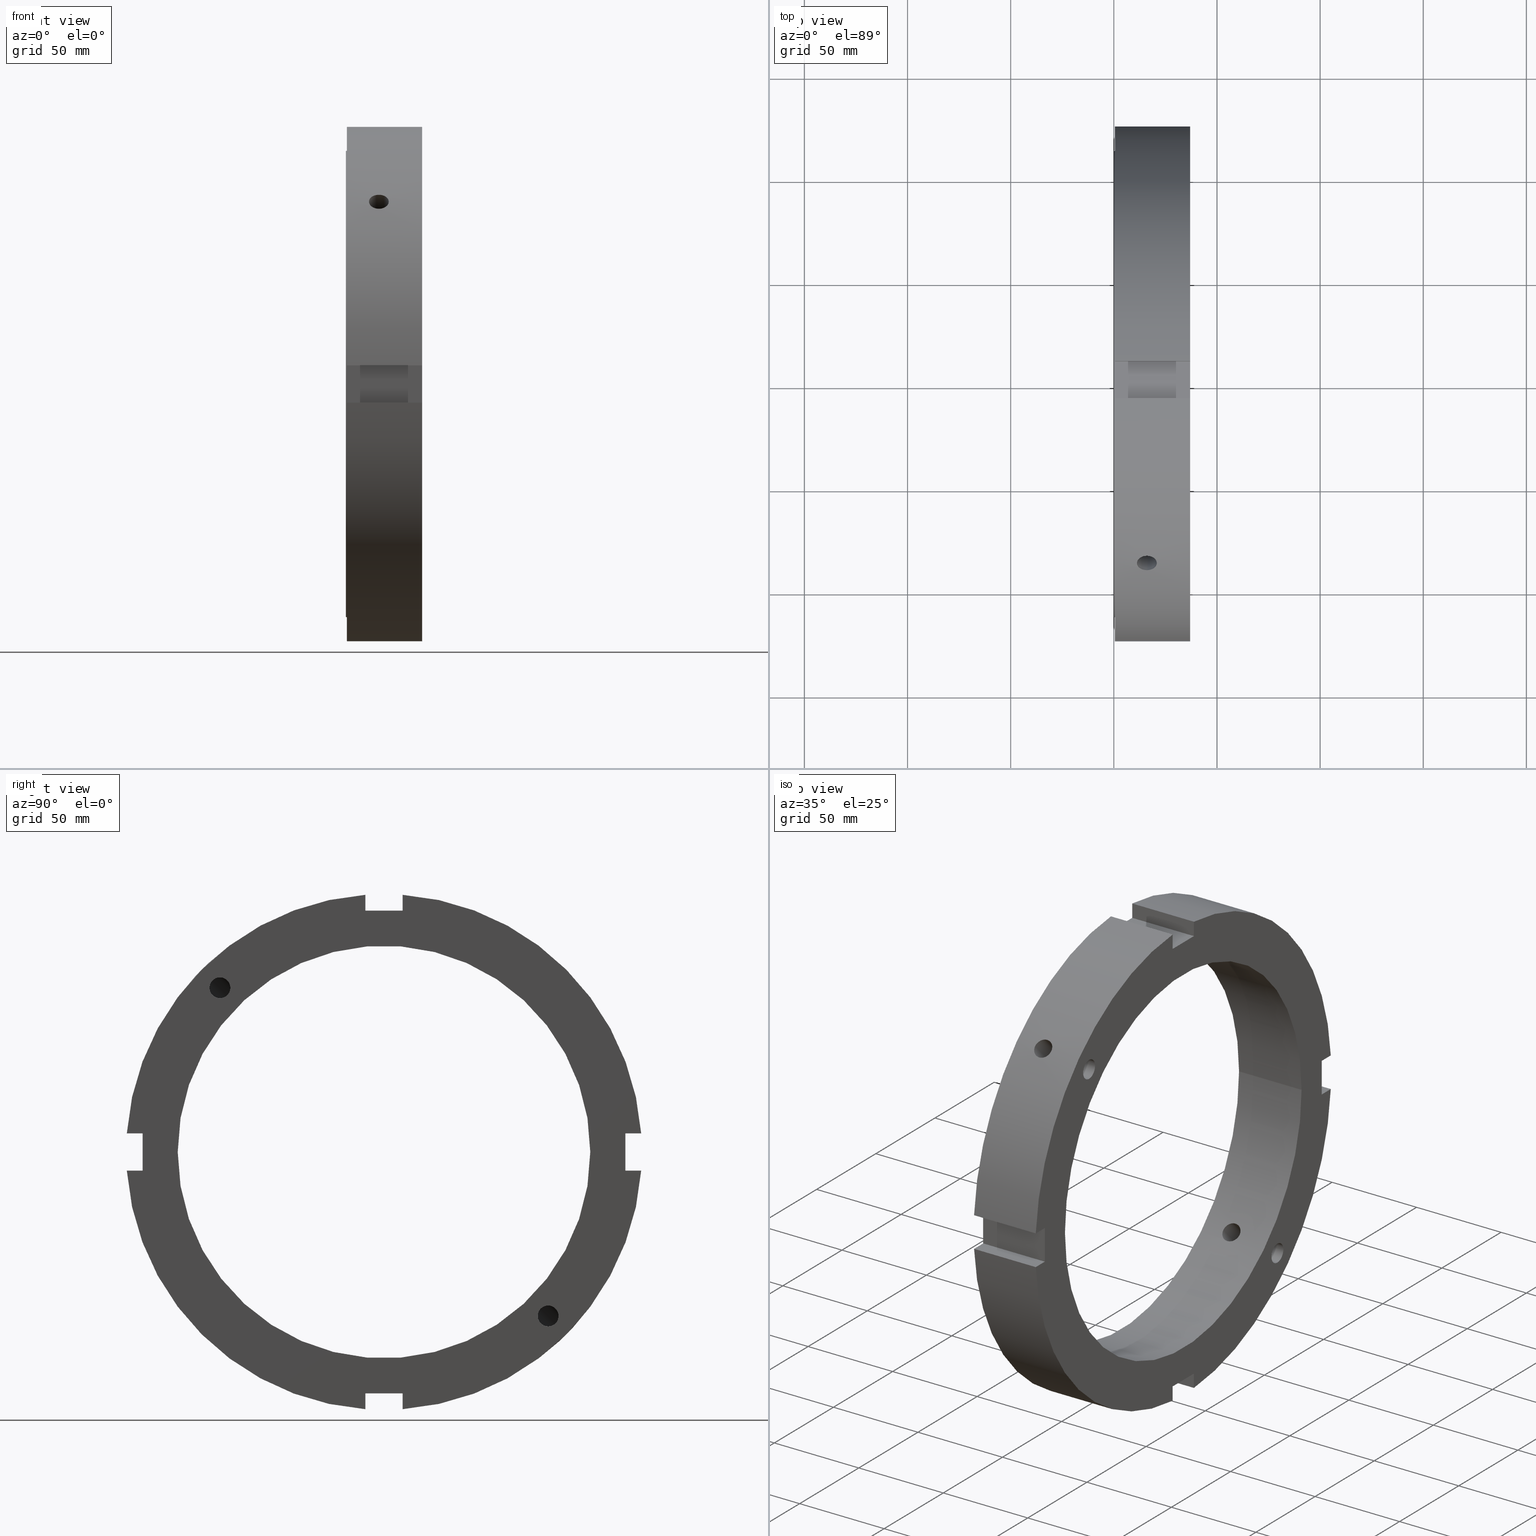
[diagram: canonical four-view strip — front | top / right | iso, engineering-drawing reading convention]
A machine part, canonical four-view strip (front | top / right | iso — engineering-drawing reading convention). The complete STEP part file that produces these views, byte-faithful:
ISO-10303-21;
HEADER;
/****************************************************************
 * Generated by software with PDElib inside                    *
 * PDElib Version v51a, created Wed 11/30/2011                  *
 * ITI Transcendata (http://www.transcendata.com/)              *
 ****************************************************************/
FILE_DESCRIPTION((''),'2;1');
FILE_NAME('C:\\Users\\sugidesign\\Documents\\Fukuda\\3Ddata\\ZMVtype\\FKD ZMV200.stp','2014-02-22T07:15:38',('sugidesign'),(''),'Autodesk Inventor LT ','Autodesk Inventor LT ','');
FILE_SCHEMA(('CONFIG_CONTROL_DESIGN'));
ENDSEC;
DATA;
#5=APPLICATION_CONTEXT('configuration controlled 3D designs of mechanical parts and assemblies');
#6=APPLICATION_PROTOCOL_DEFINITION('International Standard','ap203_configuration_controlled_3d_design_of_mechanical_parts_and_assemblies_mim_lf',2004,#5);
#7=PRODUCT_CONTEXT('',#5,'mechanical');
#8=PRODUCT('FKD ZMV200','FKD ZMV200',$,(#7));
#9=PRODUCT_RELATED_PRODUCT_CATEGORY('part',$,(#8));
#10=PRODUCT_DEFINITION_FORMATION('',$,#8);
#11=PRODUCT_DEFINITION_CONTEXT('part definition',#5,'design');
#12=PRODUCT_DEFINITION('',$,#10,#11);
#18=(NAMED_UNIT(*)PLANE_ANGLE_UNIT()SI_UNIT($,.RADIAN.));
#19=DIMENSIONAL_EXPONENTS(0.0,0.0,0.0,0.0,0.0,0.0,0.0);
#20=PLANE_ANGLE_MEASURE_WITH_UNIT(PLANE_ANGLE_MEASURE(0.0174532925),#18);
#24=(CONVERSION_BASED_UNIT('DEGREE',#20)NAMED_UNIT(#19)PLANE_ANGLE_UNIT());
#28=(NAMED_UNIT(*)SI_UNIT($,.STERADIAN.)SOLID_ANGLE_UNIT());
#32=(LENGTH_UNIT()NAMED_UNIT(*)SI_UNIT(.MILLI.,.METRE.));
#34=UNCERTAINTY_MEASURE_WITH_UNIT(LENGTH_MEASURE(0.01),#32,'DISTANCE_ACCURACY_VALUE','');
#36=(GEOMETRIC_REPRESENTATION_CONTEXT(3)GLOBAL_UNCERTAINTY_ASSIGNED_CONTEXT((#34))GLOBAL_UNIT_ASSIGNED_CONTEXT((#24,#28,#32))REPRESENTATION_CONTEXT('None','None'));
#37=AXIS2_PLACEMENT_3D('',#38,#39,#40);
#38=CARTESIAN_POINT('',(0.0,0.0,0.0));
#39=DIRECTION('',(0.0,0.0,1.0));
#40=DIRECTION('',(1.0,0.0,0.0));
#41=SHAPE_REPRESENTATION('',(#37),#36);
#42=PRODUCT_DEFINITION_SHAPE('','',#12);
#43=SHAPE_DEFINITION_REPRESENTATION(#42,#41);
#49=(NAMED_UNIT(*)PLANE_ANGLE_UNIT()SI_UNIT($,.RADIAN.));
#50=DIMENSIONAL_EXPONENTS(0.0,0.0,0.0,0.0,0.0,0.0,0.0);
#51=PLANE_ANGLE_MEASURE_WITH_UNIT(PLANE_ANGLE_MEASURE(0.0174532925),#49);
#55=(CONVERSION_BASED_UNIT('DEGREE',#51)NAMED_UNIT(#50)PLANE_ANGLE_UNIT());
#59=(NAMED_UNIT(*)SI_UNIT($,.STERADIAN.)SOLID_ANGLE_UNIT());
#63=(LENGTH_UNIT()NAMED_UNIT(*)SI_UNIT(.MILLI.,.METRE.));
#65=UNCERTAINTY_MEASURE_WITH_UNIT(LENGTH_MEASURE(0.000001),#63,'DISTANCE_ACCURACY_VALUE','');
#67=(GEOMETRIC_REPRESENTATION_CONTEXT(3)GLOBAL_UNCERTAINTY_ASSIGNED_CONTEXT((#65))GLOBAL_UNIT_ASSIGNED_CONTEXT((#55,#59,#63))REPRESENTATION_CONTEXT('','3D'));
#68=CARTESIAN_POINT('',(26.999999999999975,-79.549512883486543,79.549512883486642));
#69=DIRECTION('',(-1.0,0.0,0.0));
#70=DIRECTION('',(0.0,-1.0,0.0));
#71=AXIS2_PLACEMENT_3D('',#68,#69,#70);
#72=CYLINDRICAL_SURFACE('',#71,5.053);
#73=CARTESIAN_POINT('',(36.999999999999972,-84.602512883486526,79.549512883486642));
#74=VERTEX_POINT('',#73);
#75=CARTESIAN_POINT('',(36.999999999999972,-79.549512883486543,79.549512883486642));
#76=DIRECTION('',(-1.0,0.0,0.0));
#77=DIRECTION('',(0.0,-1.0,0.0));
#78=AXIS2_PLACEMENT_3D('',#75,#76,#77);
#79=CIRCLE('',#78,5.053);
#80=EDGE_CURVE('',#74,#74,#79,.T.);
#81=ORIENTED_EDGE('',*,*,#80,.F.);
#82=EDGE_LOOP('',(#81));
#83=FACE_OUTER_BOUND('',#82,.T.);
#84=CARTESIAN_POINT('',(16.999999999999972,-81.547635432500556,74.908358363421414));
#85=VERTEX_POINT('',#84);
#86=CARTESIAN_POINT('',(16.999999999999979,-74.90835836342103,81.547635432499959));
#87=VERTEX_POINT('',#86);
#88=CARTESIAN_POINT('',(16.999999999999915,-81.547635432500471,74.908358363421385));
#89=CARTESIAN_POINT('',(17.297283447152438,-81.390380765884117,74.840656653869303));
#90=CARTESIAN_POINT('',(17.580189470639777,-81.187074905458218,74.763114997766024));
#91=CARTESIAN_POINT('',(18.421279167485292,-80.484290708906769,74.559614833450809));
#92=CARTESIAN_POINT('',(18.951953474617973,-79.898688299474699,74.473380938773843));
#93=CARTESIAN_POINT('',(19.783539668158053,-78.77751008662915,74.528243199114883));
#94=CARTESIAN_POINT('',(20.149757262206265,-78.175390470835268,74.645750501766585));
#95=CARTESIAN_POINT('',(20.531498496898269,-77.298387411053085,75.014557931229703));
#96=CARTESIAN_POINT('',(20.631769033099474,-77.009900013360394,75.168773728164609));
#97=CARTESIAN_POINT('',(20.766048692575101,-76.464593653991002,75.534069890931832));
#98=CARTESIAN_POINT('',(20.799999999999983,-76.207798135812169,75.745206500489758));
#99=CARTESIAN_POINT('',(20.799999999999976,-75.745206500489729,76.207798135812197));
#100=CARTESIAN_POINT('',(20.766048692575097,-75.534069890931804,76.464593653991017));
#101=CARTESIAN_POINT('',(20.631769033099467,-75.168773728164581,77.009900013360394));
#102=CARTESIAN_POINT('',(20.531498496898273,-75.01455793122966,77.298387411053056));
#103=CARTESIAN_POINT('',(20.149757262206279,-74.645750501766528,78.175390470835211));
#104=CARTESIAN_POINT('',(19.783539668158056,-74.528243199114812,78.77751008662905));
#105=CARTESIAN_POINT('',(18.951953474617987,-74.473380938773744,79.898688299474571));
#106=CARTESIAN_POINT('',(18.421279167485356,-74.559614833450681,80.484290708906684));
#107=CARTESIAN_POINT('',(17.58018947063988,-74.76311499776584,81.187074905458047));
#108=CARTESIAN_POINT('',(17.297283447152687,-74.840656653869104,81.390380765883975));
#109=CARTESIAN_POINT('',(17.000000000000213,-74.908358363421186,81.547635432500329));
#110=B_SPLINE_CURVE_WITH_KNOTS('',3,(#88,#89,#90,#91,#92,#93,#94,#95,#96,#97,#98,#99,#100,#101,#102,#103,#104,#105,#106,#107,#108,#109),.UNSPECIFIED.,.F.,.U.,(4,2,2,2,2,2,2,2,2,2,4),(0.112960814252141,0.222836526414247,0.445673052828494,0.641934062182495,0.740064566859496,0.838195071536497,0.936325576213494,1.034456080890492,1.230717090244488,1.45355361665873,1.563429328820812),.UNSPECIFIED.);
#111=EDGE_CURVE('',#85,#87,#110,.T.);
#112=ORIENTED_EDGE('',*,*,#111,.F.);
#113=CARTESIAN_POINT('',(16.999999999999975,-84.190667403551601,77.551390334472273));
#114=VERTEX_POINT('',#113);
#115=CARTESIAN_POINT('',(16.999999999999975,-79.549512883486543,79.549512883486642));
#116=DIRECTION('',(-1.0,0.0,0.0));
#117=DIRECTION('',(0.0,-1.0,0.0));
#118=AXIS2_PLACEMENT_3D('',#115,#116,#117);
#119=CIRCLE('',#118,5.053);
#120=EDGE_CURVE('',#85,#114,#119,.T.);
#121=ORIENTED_EDGE('',*,*,#120,.T.);
#122=CARTESIAN_POINT('',(16.999999999999975,-77.551390334472771,84.190667403551942));
#123=VERTEX_POINT('',#122);
#124=CARTESIAN_POINT('',(17.000000000000007,-77.551390334472728,84.190667403551927));
#125=CARTESIAN_POINT('',(17.297283447152552,-77.708645001089096,84.25836911310401));
#126=CARTESIAN_POINT('',(17.580189470639816,-77.911950861515052,84.335910769207345));
#127=CARTESIAN_POINT('',(18.421279167485352,-78.614735058066501,84.539410933522504));
#128=CARTESIAN_POINT('',(18.951953474617987,-79.200337467498599,84.625644828199441));
#129=CARTESIAN_POINT('',(19.783539668158056,-80.321515680344106,84.570782567858359));
#130=CARTESIAN_POINT('',(20.149757262206297,-80.923635296137945,84.453275265206642));
#131=CARTESIAN_POINT('',(20.531498496898287,-81.800638355920114,84.084467835743496));
#132=CARTESIAN_POINT('',(20.631769033099477,-82.089125753612805,83.93025203880859));
#133=CARTESIAN_POINT('',(20.766048692575101,-82.634432112982168,83.564955876041367));
#134=CARTESIAN_POINT('',(20.799999999999979,-82.891227631160987,83.353819266483441));
#135=CARTESIAN_POINT('',(20.799999999999979,-83.353819266483399,82.891227631161001));
#136=CARTESIAN_POINT('',(20.766048692575101,-83.564955876041367,82.634432112982154));
#137=CARTESIAN_POINT('',(20.631769033099474,-83.930252038808561,82.089125753612763));
#138=CARTESIAN_POINT('',(20.531498496898273,-84.084467835743482,81.8006383559201));
#139=CARTESIAN_POINT('',(20.149757262206268,-84.453275265206585,80.923635296137917));
#140=CARTESIAN_POINT('',(19.783539668158053,-84.570782567858288,80.321515680344021));
#141=CARTESIAN_POINT('',(18.951953474617973,-84.625644828199299,79.200337467498485));
#142=CARTESIAN_POINT('',(18.421279167485295,-84.539410933522348,78.614735058066415));
#143=CARTESIAN_POINT('',(17.580189470639713,-84.335910769207132,77.911950861514924));
#144=CARTESIAN_POINT('',(17.297283447152349,-84.258369113103839,77.70864500108901));
#145=CARTESIAN_POINT('',(16.999999999999751,-84.190667403551757,77.551390334472643));
#146=B_SPLINE_CURVE_WITH_KNOTS('',3,(#124,#125,#126,#127,#128,#129,#130,#131,#132,#133,#134,#135,#136,#137,#138,#139,#140,#141,#142,#143,#144,#145),.UNSPECIFIED.,.F.,.U.,(4,2,2,2,2,2,2,2,2,2,4),(1.789350957325104,1.899226669487212,2.122063195901454,2.31832420525545,2.416454709932447,2.514585214609445,2.612715719286446,2.710846223963447,2.907107233317448,3.129943759731694,3.239819471893823),.UNSPECIFIED.);
#147=EDGE_CURVE('',#123,#114,#146,.T.);
#148=ORIENTED_EDGE('',*,*,#147,.F.);
#149=CARTESIAN_POINT('',(16.999999999999975,-79.549512883486543,79.549512883486642));
#150=DIRECTION('',(-1.0,0.0,0.0));
#151=DIRECTION('',(0.0,-1.0,0.0));
#152=AXIS2_PLACEMENT_3D('',#149,#150,#151);
#153=CIRCLE('',#152,5.053);
#154=EDGE_CURVE('',#123,#87,#153,.T.);
#155=ORIENTED_EDGE('',*,*,#154,.T.);
#156=EDGE_LOOP('',(#112,#121,#148,#155));
#157=FACE_BOUND('',#156,.T.);
#158=ADVANCED_FACE('',(#83,#157),#72,.F.);
#159=CARTESIAN_POINT('',(15.481925646026845,-79.549512883486543,79.549512883486642));
#160=DIRECTION('',(1.0,0.0,0.0));
#161=DIRECTION('',(0.0,-1.0,0.0));
#162=AXIS2_PLACEMENT_3D('',#159,#160,#161);
#163=CONICAL_SURFACE('',#162,2.5265,59.000000000000007);
#164=CARTESIAN_POINT('',(16.999999999999879,-84.190667403551473,77.551390334472387));
#165=CARTESIAN_POINT('',(16.873913989128681,-83.760772551038087,77.083513632562074));
#166=CARTESIAN_POINT('',(16.806935266207837,-83.317131264851142,76.625516291445962));
#167=CARTESIAN_POINT('',(16.806935266207837,-82.895320370189168,76.203705396783988));
#168=CARTESIAN_POINT('',(16.806935266207837,-82.46820930620531,75.776594332800116));
#169=CARTESIAN_POINT('',(16.874222244507088,-82.014368268340576,75.337202207980027));
#170=CARTESIAN_POINT('',(16.99999999999995,-81.547635432500527,74.908358363421456));
#171=B_SPLINE_CURVE_WITH_KNOTS('',3,(#164,#165,#166,#167,#168,#169,#170),.UNSPECIFIED.,.F.,.U.,(4,3,4),(-0.178959206396305,0.0,0.181207877797677),.UNSPECIFIED.);
#172=EDGE_CURVE('',#114,#85,#171,.T.);
#173=ORIENTED_EDGE('',*,*,#172,.F.);
#174=ORIENTED_EDGE('',*,*,#120,.F.);
#175=EDGE_LOOP('',(#173,#174));
#176=FACE_OUTER_BOUND('',#175,.T.);
#177=ADVANCED_FACE('',(#176),#163,.F.);
#178=CARTESIAN_POINT('',(15.481925646026845,-79.549512883486543,79.549512883486642));
#179=DIRECTION('',(1.0,0.0,0.0));
#180=DIRECTION('',(0.0,-1.0,0.0));
#181=AXIS2_PLACEMENT_3D('',#178,#179,#180);
#182=CONICAL_SURFACE('',#181,2.5265,59.000000000000007);
#183=CARTESIAN_POINT('',(17.000000000000071,-74.908358363420902,81.547635432500073));
#184=CARTESIAN_POINT('',(16.874222244507123,-75.33720220797963,82.01436826834032));
#185=CARTESIAN_POINT('',(16.806935266207791,-75.776594332799974,82.468209306205154));
#186=CARTESIAN_POINT('',(16.806935266207791,-76.625516291446104,83.317131264851284));
#187=CARTESIAN_POINT('',(16.873913989128713,-77.083513632562287,83.760772551038457));
#188=CARTESIAN_POINT('',(16.999999999999986,-77.551390334472757,84.19066740355197));
#189=B_SPLINE_CURVE_WITH_KNOTS('',3,(#183,#184,#185,#186,#187,#188),.UNSPECIFIED.,.F.,.U.,(4,2,4),(2.488675047228872,2.669882925026614,2.848842131422979),.UNSPECIFIED.);
#190=EDGE_CURVE('',#87,#123,#189,.T.);
#191=ORIENTED_EDGE('',*,*,#190,.F.);
#192=ORIENTED_EDGE('',*,*,#154,.F.);
#193=EDGE_LOOP('',(#191,#192));
#194=FACE_OUTER_BOUND('',#193,.T.);
#195=ADVANCED_FACE('',(#194),#182,.F.);
#196=CARTESIAN_POINT('',(15.999999999999979,-250.71996330567691,250.71996330567703));
#197=DIRECTION('',(0.0,-0.707106781186547,0.707106781186548));
#198=DIRECTION('',(1.0,0.0,0.0));
#199=AXIS2_PLACEMENT_3D('',#196,#197,#198);
#200=CYLINDRICAL_SURFACE('',#199,4.8);
#201=CARTESIAN_POINT('',(15.999999999999979,-91.717269196183082,84.929044096792268));
#202=VERTEX_POINT('',#201);
#203=CARTESIAN_POINT('',(15.999999999999979,-91.717269196183054,84.929044096792296));
#204=CARTESIAN_POINT('',(15.397237708804285,-91.717269196183054,84.929044096792296));
#205=CARTESIAN_POINT('',(14.754338908633153,-91.635483517042104,85.01763482270195));
#206=CARTESIAN_POINT('',(13.571735640506439,-91.301385551895322,85.376326147910063));
#207=CARTESIAN_POINT('',(13.03202615726121,-91.048898848249877,85.646247709419697));
#208=CARTESIAN_POINT('',(12.179748774635051,-90.462617492950983,86.265268587534536));
#209=CARTESIAN_POINT('',(11.810350325449306,-90.0896998710774,86.655615457474198));
#210=CARTESIAN_POINT('',(11.320474297826044,-89.265763316667659,87.504132546217534));
#211=CARTESIAN_POINT('',(11.199999999999985,-88.814564920573517,87.962130376063342));
#212=CARTESIAN_POINT('',(11.199999999999973,-87.962130376063328,88.814564920573531));
#213=CARTESIAN_POINT('',(11.320474297826021,-87.504132546217505,89.265763316667673));
#214=CARTESIAN_POINT('',(11.810350325449273,-86.65561545747417,90.089699871077443));
#215=CARTESIAN_POINT('',(12.179748774635048,-86.265268587534507,90.462617492950997));
#216=CARTESIAN_POINT('',(13.032026157261193,-85.646247709419683,91.04889884824992));
#217=CARTESIAN_POINT('',(13.571735640506411,-85.376326147910007,91.301385551895379));
#218=CARTESIAN_POINT('',(14.754338908633125,-85.017634822701893,91.635483517042161));
#219=CARTESIAN_POINT('',(15.39723770880428,-84.929044096792211,91.717269196183111));
#220=CARTESIAN_POINT('',(16.602762291195678,-84.929044096792211,91.717269196183111));
#221=CARTESIAN_POINT('',(17.245661091366831,-85.017634822701893,91.635483517042161));
#222=CARTESIAN_POINT('',(18.428264359493543,-85.376326147910007,91.301385551895379));
#223=CARTESIAN_POINT('',(18.967973842738761,-85.646247709419683,91.04889884824992));
#224=CARTESIAN_POINT('',(19.820251225364906,-86.265268587534507,90.462617492950997));
#225=CARTESIAN_POINT('',(20.18964967455069,-86.65561545747417,90.089699871077443));
#226=CARTESIAN_POINT('',(20.679525702173937,-87.504132546217505,89.265763316667673));
#227=CARTESIAN_POINT('',(20.799999999999983,-87.962130376063328,88.814564920573531));
#228=CARTESIAN_POINT('',(20.799999999999976,-88.814564920573517,87.962130376063342));
#229=CARTESIAN_POINT('',(20.679525702173912,-89.265763316667673,87.504132546217534));
#230=CARTESIAN_POINT('',(20.189649674550651,-90.0896998710774,86.655615457474212));
#231=CARTESIAN_POINT('',(19.82025122536491,-90.462617492950983,86.265268587534536));
#232=CARTESIAN_POINT('',(18.967973842738747,-91.048898848249877,85.646247709419697));
#233=CARTESIAN_POINT('',(18.428264359493518,-91.301385551895322,85.376326147910063));
#234=CARTESIAN_POINT('',(17.245661091366806,-91.635483517042104,85.01763482270195));
#235=CARTESIAN_POINT('',(16.60276229119567,-91.717269196183054,84.929044096792296));
#236=CARTESIAN_POINT('',(15.999999999999977,-91.717269196183054,84.929044096792296));
#237=B_SPLINE_CURVE_WITH_KNOTS('',3,(#203,#204,#205,#206,#207,#208,#209,#210,#211,#212,#213,#214,#215,#216,#217,#218,#219,#220,#221,#222,#223,#224,#225,#226,#227,#228,#229,#230,#231,#232,#233,#234,#235,#236),.UNSPECIFIED.,.T.,.U.,(4,2,2,2,2,2,2,2,2,2,2,2,2,2,2,2,4),(0.0,0.180828687358708,0.361657374717416,0.542486048799665,0.723314722881914,0.904143396964161,1.084972071046409,1.265800758405119,1.446629445763828,1.627458133122538,1.808286820481247,1.989115494563495,2.169944168645742,2.350772842727992,2.53160151681024,2.712430204168948,2.893258891527657),.UNSPECIFIED.);
#238=EDGE_CURVE('',#202,#202,#237,.T.);
#239=ORIENTED_EDGE('',*,*,#238,.F.);
#240=EDGE_LOOP('',(#239));
#241=FACE_OUTER_BOUND('',#240,.T.);
#242=ORIENTED_EDGE('',*,*,#172,.T.);
#243=ORIENTED_EDGE('',*,*,#111,.T.);
#244=ORIENTED_EDGE('',*,*,#190,.T.);
#245=ORIENTED_EDGE('',*,*,#147,.T.);
#246=EDGE_LOOP('',(#242,#243,#244,#245));
#247=FACE_BOUND('',#246,.T.);
#248=CARTESIAN_POINT('',(15.999999999999979,-74.023284992815533,67.235059893424719));
#249=VERTEX_POINT('',#248);
#250=CARTESIAN_POINT('',(15.999999999999979,-74.023284992815519,67.235059893424733));
#251=CARTESIAN_POINT('',(16.60279811131387,-74.023284992815519,67.235059893424733));
#252=CARTESIAN_POINT('',(17.245712329034614,-73.942342395068138,67.324513489120463));
#253=CARTESIAN_POINT('',(18.428305731572394,-73.611316971484385,67.686292032287298));
#254=CARTESIAN_POINT('',(18.967992763828889,-73.361016450792846,67.958392070424964));
#255=CARTESIAN_POINT('',(19.820232259121472,-72.778857663911154,68.581481936176033));
#256=CARTESIAN_POINT('',(20.189625293534419,-72.408135556840222,68.973992599121033));
#257=CARTESIAN_POINT('',(20.679511726963703,-71.587279692322412,69.825576518442233));
#258=CARTESIAN_POINT('',(20.799999999999979,-71.136920674388733,70.284435562920777));
#259=CARTESIAN_POINT('',(20.799999999999979,-70.284435562920706,71.13692067438879));
#260=CARTESIAN_POINT('',(20.6795117269637,-69.825576518442134,71.587279692322497));
#261=CARTESIAN_POINT('',(20.189625293534416,-68.973992599120933,72.408135556840293));
#262=CARTESIAN_POINT('',(19.820232259121468,-68.581481936175948,72.778857663911197));
#263=CARTESIAN_POINT('',(18.967992763828889,-67.958392070424892,73.361016450792903));
#264=CARTESIAN_POINT('',(18.428305731572401,-67.686292032287213,73.611316971484456));
#265=CARTESIAN_POINT('',(17.245712329034617,-67.324513489120378,73.942342395068209));
#266=CARTESIAN_POINT('',(16.60279811131387,-67.235059893424648,74.023284992815604));
#267=CARTESIAN_POINT('',(15.397201888686087,-67.235059893424648,74.023284992815604));
#268=CARTESIAN_POINT('',(14.75428767096534,-67.324513489120378,73.942342395068209));
#269=CARTESIAN_POINT('',(13.571694268427557,-67.686292032287213,73.611316971484456));
#270=CARTESIAN_POINT('',(13.03200723617107,-67.958392070424892,73.361016450792903));
#271=CARTESIAN_POINT('',(12.179767740878489,-68.581481936175948,72.778857663911197));
#272=CARTESIAN_POINT('',(11.810374706465542,-68.973992599120933,72.408135556840293));
#273=CARTESIAN_POINT('',(11.320488273036256,-69.825576518442134,71.587279692322497));
#274=CARTESIAN_POINT('',(11.199999999999978,-70.284435562920706,71.13692067438879));
#275=CARTESIAN_POINT('',(11.199999999999978,-71.136920674388733,70.284435562920777));
#276=CARTESIAN_POINT('',(11.320488273036254,-71.587279692322426,69.825576518442233));
#277=CARTESIAN_POINT('',(11.810374706465527,-72.408135556840222,68.973992599121033));
#278=CARTESIAN_POINT('',(12.179767740878493,-72.778857663911111,68.581481936176061));
#279=CARTESIAN_POINT('',(13.032007236171069,-73.361016450792818,67.958392070424978));
#280=CARTESIAN_POINT('',(13.571694268427553,-73.611316971484385,67.686292032287298));
#281=CARTESIAN_POINT('',(14.75428767096534,-73.942342395068138,67.324513489120463));
#282=CARTESIAN_POINT('',(15.397201888686089,-74.023284992815533,67.235059893424733));
#283=CARTESIAN_POINT('',(15.99999999999998,-74.023284992815533,67.235059893424733));
#284=B_SPLINE_CURVE_WITH_KNOTS('',3,(#250,#251,#252,#253,#254,#255,#256,#257,#258,#259,#260,#261,#262,#263,#264,#265,#266,#267,#268,#269,#270,#271,#272,#273,#274,#275,#276,#277,#278,#279,#280,#281,#282,#283),.UNSPECIFIED.,.T.,.U.,(4,2,2,2,2,2,2,2,2,2,2,2,2,2,2,2,4),(0.0,0.180839433394167,0.361678866788334,0.542518267742217,0.723357668696099,0.90419706964998,1.085036470603861,1.265875903998029,1.446715337392196,1.627554770786364,1.808394204180531,1.989233605134412,2.170073006088293,2.350912407042173,2.531751807996054,2.712591241390222,2.89343067478439),.UNSPECIFIED.);
#285=EDGE_CURVE('',#249,#249,#284,.T.);
#286=ORIENTED_EDGE('',*,*,#285,.F.);
#287=EDGE_LOOP('',(#286));
#288=FACE_BOUND('',#287,.T.);
#289=ADVANCED_FACE('',(#241,#247,#288),#200,.F.);
#290=CARTESIAN_POINT('',(15.481925646026845,79.549512883486614,-79.549512883486557));
#291=DIRECTION('',(1.0,0.0,0.0));
#292=DIRECTION('',(0.0,0.0,-1.0));
#293=AXIS2_PLACEMENT_3D('',#290,#291,#292);
#294=CONICAL_SURFACE('',#293,2.5265,59.000000000000007);
#295=CARTESIAN_POINT('',(16.999999999999972,74.908358363421399,-81.54763543250057));
#296=VERTEX_POINT('',#295);
#297=CARTESIAN_POINT('',(16.999999999999975,77.551390334472259,-84.190667403551615));
#298=VERTEX_POINT('',#297);
#299=CARTESIAN_POINT('',(16.999999999999964,74.908358363421414,-81.547635432500556));
#300=CARTESIAN_POINT('',(16.874222245444621,75.337202204783495,-82.014368264861716));
#301=CARTESIAN_POINT('',(16.806935266207837,75.776594336770046,-82.468209310175254));
#302=CARTESIAN_POINT('',(16.806935266207837,76.203705396783974,-82.895320370189182));
#303=CARTESIAN_POINT('',(16.806935266207837,76.625516291445933,-83.317131264851156));
#304=CARTESIAN_POINT('',(16.873913989128695,77.083513632562017,-83.760772551038144));
#305=CARTESIAN_POINT('',(16.999999999999901,77.551390334472373,-84.190667403551544));
#306=B_SPLINE_CURVE_WITH_KNOTS('',3,(#299,#300,#301,#302,#303,#304,#305),.UNSPECIFIED.,.F.,.U.,(4,3,4),(-0.181207876113376,0.0,0.1789592063963),.UNSPECIFIED.);
#307=EDGE_CURVE('',#296,#298,#306,.T.);
#308=ORIENTED_EDGE('',*,*,#307,.F.);
#309=CARTESIAN_POINT('',(16.999999999999975,79.549512883486614,-79.549512883486557));
#310=DIRECTION('',(1.0,0.0,0.0));
#311=DIRECTION('',(0.0,0.0,-1.0));
#312=AXIS2_PLACEMENT_3D('',#309,#310,#311);
#313=CIRCLE('',#312,5.053);
#314=EDGE_CURVE('',#296,#298,#313,.T.);
#315=ORIENTED_EDGE('',*,*,#314,.T.);
#316=EDGE_LOOP('',(#308,#315));
#317=FACE_OUTER_BOUND('',#316,.T.);
#318=ADVANCED_FACE('',(#317),#294,.F.);
#319=CARTESIAN_POINT('',(15.481925646026845,79.549512883486614,-79.549512883486557));
#320=DIRECTION('',(1.0,0.0,0.0));
#321=DIRECTION('',(0.0,0.0,-1.0));
#322=AXIS2_PLACEMENT_3D('',#319,#320,#321);
#323=CONICAL_SURFACE('',#322,2.5265,59.000000000000007);
#324=CARTESIAN_POINT('',(16.999999999999975,84.190667403551927,-77.551390334472799));
#325=VERTEX_POINT('',#324);
#326=CARTESIAN_POINT('',(16.999999999999979,81.547635432499931,-74.908358363421044));
#327=VERTEX_POINT('',#326);
#328=CARTESIAN_POINT('',(16.999999999999968,84.190667403551927,-77.551390334472799));
#329=CARTESIAN_POINT('',(16.873913989128695,83.760772551038428,-77.083513632562301));
#330=CARTESIAN_POINT('',(16.806935266207791,83.317131264851255,-76.625516291446104));
#331=CARTESIAN_POINT('',(16.806935266207791,82.468209306205154,-75.776594332799988));
#332=CARTESIAN_POINT('',(16.874222244507109,82.01436826834032,-75.337202207979686));
#333=CARTESIAN_POINT('',(17.00000000000006,81.547635432500059,-74.908358363420945));
#334=B_SPLINE_CURVE_WITH_KNOTS('',3,(#328,#329,#330,#331,#332,#333),.UNSPECIFIED.,.F.,.U.,(4,2,4),(2.465155257245136,2.644114463641494,2.825322341439234),.UNSPECIFIED.);
#335=EDGE_CURVE('',#325,#327,#334,.T.);
#336=ORIENTED_EDGE('',*,*,#335,.F.);
#337=CARTESIAN_POINT('',(16.999999999999975,79.549512883486614,-79.549512883486557));
#338=DIRECTION('',(1.0,0.0,0.0));
#339=DIRECTION('',(0.0,0.0,-1.0));
#340=AXIS2_PLACEMENT_3D('',#337,#338,#339);
#341=CIRCLE('',#340,5.053);
#342=EDGE_CURVE('',#325,#327,#341,.T.);
#343=ORIENTED_EDGE('',*,*,#342,.T.);
#344=EDGE_LOOP('',(#336,#343));
#345=FACE_OUTER_BOUND('',#344,.T.);
#346=ADVANCED_FACE('',(#345),#323,.F.);
#347=CARTESIAN_POINT('',(26.999999999999975,79.549512883486614,-79.549512883486557));
#348=DIRECTION('',(1.0,0.0,0.0));
#349=DIRECTION('',(0.0,0.0,-1.0));
#350=AXIS2_PLACEMENT_3D('',#347,#348,#349);
#351=CYLINDRICAL_SURFACE('',#350,5.053);
#352=CARTESIAN_POINT('',(16.99999999999979,77.551390334472558,-84.190667403551743));
#353=CARTESIAN_POINT('',(17.297283447152175,77.708645001088826,-84.258369113103782));
#354=CARTESIAN_POINT('',(17.580189470639642,77.911950861514839,-84.335910769207132));
#355=CARTESIAN_POINT('',(18.421279167485313,78.614735058066415,-84.539410933522362));
#356=CARTESIAN_POINT('',(18.951953474617973,79.200337467498457,-84.625644828199341));
#357=CARTESIAN_POINT('',(19.783539668158049,80.321515680344007,-84.570782567858316));
#358=CARTESIAN_POINT('',(20.149757262206268,80.923635296137903,-84.453275265206599));
#359=CARTESIAN_POINT('',(20.531498496898273,81.800638355920086,-84.084467835743482));
#360=CARTESIAN_POINT('',(20.631769033099474,82.089125753612748,-83.93025203880859));
#361=CARTESIAN_POINT('',(20.766048692575101,82.634432112982125,-83.564955876041381));
#362=CARTESIAN_POINT('',(20.799999999999976,82.891227631160987,-83.353819266483413));
#363=CARTESIAN_POINT('',(20.799999999999979,83.353819266483413,-82.891227631161001));
#364=CARTESIAN_POINT('',(20.766048692575101,83.564955876041353,-82.634432112982182));
#365=CARTESIAN_POINT('',(20.631769033099477,83.930252038808561,-82.089125753612819));
#366=CARTESIAN_POINT('',(20.531498496898287,84.084467835743482,-81.800638355920142));
#367=CARTESIAN_POINT('',(20.149757262206297,84.453275265206628,-80.923635296137974));
#368=CARTESIAN_POINT('',(19.783539668158056,84.570782567858345,-80.321515680344135));
#369=CARTESIAN_POINT('',(18.951953474617987,84.625644828199427,-79.200337467498628));
#370=CARTESIAN_POINT('',(18.421279167485338,84.539410933522475,-78.614735058066543));
#371=CARTESIAN_POINT('',(17.580189470639702,84.335910769207274,-77.91195086151501));
#372=CARTESIAN_POINT('',(17.297283447152296,84.258369113103981,-77.708645001089053));
#373=CARTESIAN_POINT('',(16.999999999999961,84.190667403551942,-77.551390334472813));
#374=B_SPLINE_CURVE_WITH_KNOTS('',3,(#352,#353,#354,#355,#356,#357,#358,#359,#360,#361,#362,#363,#364,#365,#366,#367,#368,#369,#370,#371,#372,#373),.UNSPECIFIED.,.F.,.U.,(4,2,2,2,2,2,2,2,2,2,4),(0.11296081425208,0.222836526414247,0.445673052828493,0.641934062182494,0.740064566859495,0.838195071536496,0.936325576213494,1.034456080890492,1.230717090244488,1.453553616658729,1.563429328820875),.UNSPECIFIED.);
#375=EDGE_CURVE('',#298,#325,#374,.T.);
#376=ORIENTED_EDGE('',*,*,#375,.F.);
#377=ORIENTED_EDGE('',*,*,#314,.F.);
#378=CARTESIAN_POINT('',(17.000000000000171,81.547635432500257,-74.908358363421186));
#379=CARTESIAN_POINT('',(17.297283447152431,81.390380765884032,-74.840656653869161));
#380=CARTESIAN_POINT('',(17.58018947063978,81.187074905458132,-74.763114997765868));
#381=CARTESIAN_POINT('',(18.421279167485356,80.484290708906656,-74.559614833450695));
#382=CARTESIAN_POINT('',(18.951953474617987,79.898688299474557,-74.473380938773758));
#383=CARTESIAN_POINT('',(19.783539668158056,78.777510086629036,-74.528243199114826));
#384=CARTESIAN_POINT('',(20.149757262206279,78.175390470835197,-74.645750501766543));
#385=CARTESIAN_POINT('',(20.531498496898273,77.298387411053042,-75.014557931229689));
#386=CARTESIAN_POINT('',(20.631769033099467,77.009900013360365,-75.168773728164609));
#387=CARTESIAN_POINT('',(20.766048692575097,76.464593653991002,-75.534069890931818));
#388=CARTESIAN_POINT('',(20.799999999999976,76.207798135812169,-75.745206500489758));
#389=CARTESIAN_POINT('',(20.799999999999983,75.745206500489743,-76.207798135812197));
#390=CARTESIAN_POINT('',(20.766048692575101,75.534069890931818,-76.464593653991017));
#391=CARTESIAN_POINT('',(20.631769033099474,75.168773728164595,-77.009900013360408));
#392=CARTESIAN_POINT('',(20.531498496898269,75.014557931229689,-77.298387411053099));
#393=CARTESIAN_POINT('',(20.149757262206265,74.645750501766571,-78.175390470835296));
#394=CARTESIAN_POINT('',(19.783539668158053,74.528243199114868,-78.777510086629164));
#395=CARTESIAN_POINT('',(18.951953474617973,74.473380938773829,-79.898688299474713));
#396=CARTESIAN_POINT('',(18.421279167485292,74.559614833450794,-80.484290708906784));
#397=CARTESIAN_POINT('',(17.580189470639674,74.763114997766024,-81.187074905458303));
#398=CARTESIAN_POINT('',(17.297283447152264,74.840656653869345,-81.390380765884274));
#399=CARTESIAN_POINT('',(16.999999999999943,74.908358363421399,-81.547635432500527));
#400=B_SPLINE_CURVE_WITH_KNOTS('',3,(#378,#379,#380,#381,#382,#383,#384,#385,#386,#387,#388,#389,#390,#391,#392,#393,#394,#395,#396,#397,#398,#399),.UNSPECIFIED.,.F.,.U.,(4,2,2,2,2,2,2,2,2,2,4),(1.789350957325091,1.899226669487212,2.122063195901454,2.31832420525545,2.416454709932447,2.514585214609445,2.612715719286446,2.710846223963447,2.907107233317448,3.129943759731695,3.23981947189384),.UNSPECIFIED.);
#401=EDGE_CURVE('',#327,#296,#400,.T.);
#402=ORIENTED_EDGE('',*,*,#401,.F.);
#403=ORIENTED_EDGE('',*,*,#342,.F.);
#404=EDGE_LOOP('',(#376,#377,#402,#403));
#405=FACE_OUTER_BOUND('',#404,.T.);
#406=CARTESIAN_POINT('',(36.999999999999972,79.549512883486614,-84.602512883486554));
#407=VERTEX_POINT('',#406);
#408=CARTESIAN_POINT('',(36.999999999999972,79.549512883486614,-79.549512883486557));
#409=DIRECTION('',(-1.0,0.0,0.0));
#410=DIRECTION('',(0.0,0.0,-1.0));
#411=AXIS2_PLACEMENT_3D('',#408,#409,#410);
#412=CIRCLE('',#411,5.053);
#413=EDGE_CURVE('',#407,#407,#412,.T.);
#414=ORIENTED_EDGE('',*,*,#413,.F.);
#415=EDGE_LOOP('',(#414));
#416=FACE_BOUND('',#415,.T.);
#417=ADVANCED_FACE('',(#405,#416),#351,.F.);
#418=CARTESIAN_POINT('',(15.999999999999979,250.71996330567697,-250.719963305677));
#419=DIRECTION('',(0.0,-0.707106781186547,0.707106781186548));
#420=DIRECTION('',(1.0,0.0,0.0));
#421=AXIS2_PLACEMENT_3D('',#418,#419,#420);
#422=CYLINDRICAL_SURFACE('',#421,4.8);
#423=CARTESIAN_POINT('',(15.999999999999979,84.929044096792254,-91.717269196183096));
#424=VERTEX_POINT('',#423);
#425=CARTESIAN_POINT('',(15.999999999999979,84.929044096792254,-91.717269196183111));
#426=CARTESIAN_POINT('',(16.602762291195674,84.929044096792254,-91.717269196183111));
#427=CARTESIAN_POINT('',(17.24566109136682,85.017634822701922,-91.635483517042132));
#428=CARTESIAN_POINT('',(18.428264359493539,85.376326147910049,-91.301385551895336));
#429=CARTESIAN_POINT('',(18.967973842738761,85.646247709419683,-91.048898848249877));
#430=CARTESIAN_POINT('',(19.820251225364906,86.265268587534521,-90.462617492950983));
#431=CARTESIAN_POINT('',(20.189649674550672,86.655615457474198,-90.089699871077414));
#432=CARTESIAN_POINT('',(20.67952570217393,87.504132546217548,-89.265763316667673));
#433=CARTESIAN_POINT('',(20.799999999999976,87.962130376063328,-88.814564920573517));
#434=CARTESIAN_POINT('',(20.799999999999979,88.814564920573531,-87.962130376063328));
#435=CARTESIAN_POINT('',(20.679525702173933,89.265763316667687,-87.504132546217534));
#436=CARTESIAN_POINT('',(20.189649674550662,90.089699871077457,-86.65561545747417));
#437=CARTESIAN_POINT('',(19.82025122536491,90.462617492950997,-86.265268587534479));
#438=CARTESIAN_POINT('',(18.967973842738747,91.04889884824992,-85.64624770941964));
#439=CARTESIAN_POINT('',(18.428264359493514,91.301385551895351,-85.376326147910021));
#440=CARTESIAN_POINT('',(17.245661091366802,91.635483517042147,-85.017634822701908));
#441=CARTESIAN_POINT('',(16.602762291195674,91.717269196183111,-84.929044096792211));
#442=CARTESIAN_POINT('',(15.397237708804283,91.717269196183111,-84.929044096792211));
#443=CARTESIAN_POINT('',(14.754338908633159,91.635483517042147,-85.017634822701908));
#444=CARTESIAN_POINT('',(13.571735640506446,91.301385551895351,-85.376326147910021));
#445=CARTESIAN_POINT('',(13.03202615726121,91.04889884824992,-85.64624770941964));
#446=CARTESIAN_POINT('',(12.179748774635048,90.462617492950997,-86.265268587534479));
#447=CARTESIAN_POINT('',(11.810350325449297,90.089699871077457,-86.65561545747417));
#448=CARTESIAN_POINT('',(11.320474297826026,89.265763316667687,-87.504132546217534));
#449=CARTESIAN_POINT('',(11.199999999999978,88.814564920573531,-87.962130376063328));
#450=CARTESIAN_POINT('',(11.199999999999978,87.962130376063328,-88.814564920573531));
#451=CARTESIAN_POINT('',(11.320474297826031,87.504132546217534,-89.265763316667659));
#452=CARTESIAN_POINT('',(11.810350325449274,86.655615457474212,-90.0896998710774));
#453=CARTESIAN_POINT('',(12.179748774635048,86.265268587534536,-90.462617492950983));
#454=CARTESIAN_POINT('',(13.032026157261196,85.646247709419683,-91.048898848249877));
#455=CARTESIAN_POINT('',(13.57173564050642,85.376326147910049,-91.301385551895336));
#456=CARTESIAN_POINT('',(14.754338908633137,85.017634822701922,-91.635483517042132));
#457=CARTESIAN_POINT('',(15.397237708804282,84.929044096792239,-91.717269196183111));
#458=CARTESIAN_POINT('',(15.999999999999977,84.929044096792239,-91.717269196183111));
#459=B_SPLINE_CURVE_WITH_KNOTS('',3,(#425,#426,#427,#428,#429,#430,#431,#432,#433,#434,#435,#436,#437,#438,#439,#440,#441,#442,#443,#444,#445,#446,#447,#448,#449,#450,#451,#452,#453,#454,#455,#456,#457,#458),.UNSPECIFIED.,.T.,.U.,(4,2,2,2,2,2,2,2,2,2,2,2,2,2,2,2,4),(0.0,0.180828687358709,0.361657374717418,0.542486048799665,0.723314722881913,0.904143396964163,1.084972071046413,1.265800758405121,1.44662944576383,1.627458133122538,1.808286820481246,1.989115494563496,2.169944168645746,2.350772842727994,2.531601516810241,2.71243020416895,2.893258891527659),.UNSPECIFIED.);
#460=EDGE_CURVE('',#424,#424,#459,.T.);
#461=ORIENTED_EDGE('',*,*,#460,.F.);
#462=EDGE_LOOP('',(#461));
#463=FACE_OUTER_BOUND('',#462,.T.);
#464=ORIENTED_EDGE('',*,*,#307,.T.);
#465=ORIENTED_EDGE('',*,*,#375,.T.);
#466=ORIENTED_EDGE('',*,*,#335,.T.);
#467=ORIENTED_EDGE('',*,*,#401,.T.);
#468=EDGE_LOOP('',(#464,#465,#466,#467));
#469=FACE_BOUND('',#468,.T.);
#470=CARTESIAN_POINT('',(15.999999999999979,67.235059893424705,-74.023284992815547));
#471=VERTEX_POINT('',#470);
#472=CARTESIAN_POINT('',(15.999999999999977,67.23505989342469,-74.023284992815547));
#473=CARTESIAN_POINT('',(15.397201888686087,67.23505989342469,-74.023284992815547));
#474=CARTESIAN_POINT('',(14.754287670965351,67.32451348912042,-73.942342395068167));
#475=CARTESIAN_POINT('',(13.571694268427573,67.686292032287255,-73.611316971484428));
#476=CARTESIAN_POINT('',(13.03200723617107,67.958392070424907,-73.361016450792889));
#477=CARTESIAN_POINT('',(12.179767740878482,68.581481936175962,-72.778857663911197));
#478=CARTESIAN_POINT('',(11.810374706465559,68.973992599120976,-72.408135556840264));
#479=CARTESIAN_POINT('',(11.320488273036261,69.825576518442176,-71.587279692322468));
#480=CARTESIAN_POINT('',(11.199999999999978,70.284435562920734,-71.136920674388762));
#481=CARTESIAN_POINT('',(11.199999999999978,71.136920674388747,-70.284435562920748));
#482=CARTESIAN_POINT('',(11.320488273036254,71.587279692322468,-69.825576518442205));
#483=CARTESIAN_POINT('',(11.810374706465527,72.40813555684025,-68.973992599121004));
#484=CARTESIAN_POINT('',(12.179767740878493,72.778857663911154,-68.581481936176019));
#485=CARTESIAN_POINT('',(13.032007236171069,73.361016450792846,-67.958392070424935));
#486=CARTESIAN_POINT('',(13.571694268427548,73.611316971484428,-67.686292032287255));
#487=CARTESIAN_POINT('',(14.754287670965331,73.942342395068167,-67.32451348912042));
#488=CARTESIAN_POINT('',(15.397201888686086,74.023284992815562,-67.23505989342469));
#489=CARTESIAN_POINT('',(16.602798111313867,74.023284992815562,-67.23505989342469));
#490=CARTESIAN_POINT('',(17.245712329034614,73.942342395068167,-67.32451348912042));
#491=CARTESIAN_POINT('',(18.428305731572397,73.611316971484428,-67.686292032287255));
#492=CARTESIAN_POINT('',(18.967992763828889,73.361016450792889,-67.958392070424921));
#493=CARTESIAN_POINT('',(19.820232259121475,72.778857663911197,-68.581481936175976));
#494=CARTESIAN_POINT('',(20.189625293534416,72.40813555684025,-68.973992599120976));
#495=CARTESIAN_POINT('',(20.679511726963703,71.58727969232244,-69.825576518442205));
#496=CARTESIAN_POINT('',(20.799999999999979,71.136920674388762,-70.284435562920748));
#497=CARTESIAN_POINT('',(20.799999999999979,70.284435562920734,-71.136920674388762));
#498=CARTESIAN_POINT('',(20.6795117269637,69.82557651844219,-71.587279692322468));
#499=CARTESIAN_POINT('',(20.189625293534419,68.973992599120976,-72.408135556840264));
#500=CARTESIAN_POINT('',(19.820232259121468,68.581481936176004,-72.778857663911154));
#501=CARTESIAN_POINT('',(18.967992763828889,67.958392070424935,-73.36101645079286));
#502=CARTESIAN_POINT('',(18.428305731572415,67.686292032287255,-73.611316971484428));
#503=CARTESIAN_POINT('',(17.245712329034625,67.32451348912042,-73.942342395068181));
#504=CARTESIAN_POINT('',(16.602798111313874,67.23505989342469,-74.023284992815562));
#505=CARTESIAN_POINT('',(15.999999999999979,67.23505989342469,-74.023284992815562));
#506=B_SPLINE_CURVE_WITH_KNOTS('',3,(#472,#473,#474,#475,#476,#477,#478,#479,#480,#481,#482,#483,#484,#485,#486,#487,#488,#489,#490,#491,#492,#493,#494,#495,#496,#497,#498,#499,#500,#501,#502,#503,#504,#505),.UNSPECIFIED.,.T.,.U.,(4,2,2,2,2,2,2,2,2,2,2,2,2,2,2,2,4),(0.0,0.180839433394167,0.361678866788334,0.542518267742217,0.723357668696099,0.90419706964998,1.08503647060386,1.265875903998028,1.446715337392196,1.627554770786363,1.80839420418053,1.989233605134413,2.170073006088296,2.350912407042176,2.531751807996057,2.712591241390225,2.893430674784392),.UNSPECIFIED.);
#507=EDGE_CURVE('',#471,#471,#506,.T.);
#508=ORIENTED_EDGE('',*,*,#507,.F.);
#509=EDGE_LOOP('',(#508));
#510=FACE_BOUND('',#509,.T.);
#511=ADVANCED_FACE('',(#463,#469,#510),#422,.F.);
#512=CARTESIAN_POINT('',(36.999999999999972,-9.000000000000014,-117.0));
#513=DIRECTION('',(0.0,-1.0,0.0));
#514=DIRECTION('',(-1.0,0.0,0.0));
#515=AXIS2_PLACEMENT_3D('',#512,#513,#514);
#516=PLANE('',#515);
#517=CARTESIAN_POINT('',(0.499999999999963,-9.000000000000014,-117.0));
#518=VERTEX_POINT('',#517);
#519=CARTESIAN_POINT('',(0.499999999999963,-9.000000000000018,-124.67557900406959));
#520=VERTEX_POINT('',#519);
#521=CARTESIAN_POINT('',(0.499999999999965,-9.000000000000023,-117.0));
#522=DIRECTION('',(0.0,0.0,-1.0));
#523=VECTOR('',#522,7.67557900406959);
#524=LINE('',#521,#523);
#525=EDGE_CURVE('',#518,#520,#524,.T.);
#526=ORIENTED_EDGE('',*,*,#525,.F.);
#527=CARTESIAN_POINT('',(36.999999999999972,-9.000000000000014,-117.0));
#528=VERTEX_POINT('',#527);
#529=CARTESIAN_POINT('',(36.999999999999972,-9.000000000000014,-117.0));
#530=DIRECTION('',(-1.0,0.0,0.0));
#531=VECTOR('',#530,36.500000000000014);
#532=LINE('',#529,#531);
#533=EDGE_CURVE('',#528,#518,#532,.T.);
#534=ORIENTED_EDGE('',*,*,#533,.F.);
#535=CARTESIAN_POINT('',(36.999999999999972,-9.000000000000018,-124.67557900406959));
#536=VERTEX_POINT('',#535);
#537=CARTESIAN_POINT('',(36.999999999999972,-9.000000000000025,-124.67557900406959));
#538=DIRECTION('',(0.0,0.0,1.0));
#539=VECTOR('',#538,7.67557900406959);
#540=LINE('',#537,#539);
#541=EDGE_CURVE('',#536,#528,#540,.T.);
#542=ORIENTED_EDGE('',*,*,#541,.F.);
#543=CARTESIAN_POINT('',(0.499999999999964,-9.000000000000016,-124.67557900406959));
#544=DIRECTION('',(1.0,0.0,0.0));
#545=VECTOR('',#544,36.500000000000007);
#546=LINE('',#543,#545);
#547=EDGE_CURVE('',#520,#536,#546,.T.);
#548=ORIENTED_EDGE('',*,*,#547,.F.);
#549=EDGE_LOOP('',(#526,#534,#542,#548));
#550=FACE_OUTER_BOUND('',#549,.T.);
#551=ADVANCED_FACE('',(#550),#516,.F.);
#552=CARTESIAN_POINT('',(36.999999999999972,8.99999999999997,-125.0));
#553=DIRECTION('',(0.0,1.0,0.0));
#554=DIRECTION('',(1.0,0.0,0.0));
#555=AXIS2_PLACEMENT_3D('',#552,#553,#554);
#556=PLANE('',#555);
#557=CARTESIAN_POINT('',(0.499999999999963,8.99999999999997,-124.67557900406959));
#558=VERTEX_POINT('',#557);
#559=CARTESIAN_POINT('',(0.499999999999963,8.999999999999972,-117.0));
#560=VERTEX_POINT('',#559);
#561=CARTESIAN_POINT('',(0.499999999999965,8.999999999999966,-124.67557900406959));
#562=DIRECTION('',(0.0,0.0,1.0));
#563=VECTOR('',#562,7.67557900406959);
#564=LINE('',#561,#563);
#565=EDGE_CURVE('',#558,#560,#564,.T.);
#566=ORIENTED_EDGE('',*,*,#565,.F.);
#567=CARTESIAN_POINT('',(36.999999999999972,8.99999999999997,-124.67557900406959));
#568=VERTEX_POINT('',#567);
#569=CARTESIAN_POINT('',(36.999999999999972,8.99999999999997,-124.67557900406959));
#570=DIRECTION('',(-1.0,0.0,0.0));
#571=VECTOR('',#570,36.500000000000007);
#572=LINE('',#569,#571);
#573=EDGE_CURVE('',#568,#558,#572,.T.);
#574=ORIENTED_EDGE('',*,*,#573,.F.);
#575=CARTESIAN_POINT('',(36.999999999999972,8.999999999999972,-117.0));
#576=VERTEX_POINT('',#575);
#577=CARTESIAN_POINT('',(36.999999999999972,8.999999999999966,-117.0));
#578=DIRECTION('',(0.0,0.0,-1.0));
#579=VECTOR('',#578,7.67557900406959);
#580=LINE('',#577,#579);
#581=EDGE_CURVE('',#576,#568,#580,.T.);
#582=ORIENTED_EDGE('',*,*,#581,.F.);
#583=CARTESIAN_POINT('',(36.999999999999972,8.999999999999972,-117.0));
#584=DIRECTION('',(-1.0,0.0,0.0));
#585=VECTOR('',#584,36.500000000000014);
#586=LINE('',#583,#585);
#587=EDGE_CURVE('',#576,#560,#586,.T.);
#588=ORIENTED_EDGE('',*,*,#587,.T.);
#589=EDGE_LOOP('',(#566,#574,#582,#588));
#590=FACE_OUTER_BOUND('',#589,.T.);
#591=ADVANCED_FACE('',(#590),#556,.F.);
#592=CARTESIAN_POINT('',(36.999999999999972,8.999999999999972,-117.0));
#593=DIRECTION('',(0.0,0.0,1.0));
#594=DIRECTION('',(0.0,-1.0,0.0));
#595=AXIS2_PLACEMENT_3D('',#592,#593,#594);
#596=PLANE('',#595);
#597=CARTESIAN_POINT('',(0.499999999999965,8.999999999999979,-116.99999999999999));
#598=DIRECTION('',(0.0,-1.0,0.0));
#599=VECTOR('',#598,17.999999999999986);
#600=LINE('',#597,#599);
#601=EDGE_CURVE('',#560,#518,#600,.T.);
#602=ORIENTED_EDGE('',*,*,#601,.F.);
#603=ORIENTED_EDGE('',*,*,#587,.F.);
#604=CARTESIAN_POINT('',(36.999999999999972,-9.000000000000014,-116.99999999999999));
#605=DIRECTION('',(0.0,1.0,0.0));
#606=VECTOR('',#605,17.999999999999979);
#607=LINE('',#604,#606);
#608=EDGE_CURVE('',#528,#576,#607,.T.);
#609=ORIENTED_EDGE('',*,*,#608,.F.);
#610=ORIENTED_EDGE('',*,*,#533,.T.);
#611=EDGE_LOOP('',(#602,#603,#609,#610));
#612=FACE_OUTER_BOUND('',#611,.T.);
#613=ADVANCED_FACE('',(#612),#596,.F.);
#614=CARTESIAN_POINT('',(36.999999999999972,-117.0,9.000000000000007));
#615=DIRECTION('',(0.0,0.0,1.0));
#616=DIRECTION('',(-1.0,0.0,0.0));
#617=AXIS2_PLACEMENT_3D('',#614,#615,#616);
#618=PLANE('',#617);
#619=CARTESIAN_POINT('',(0.499999999999963,-117.0,9.000000000000007));
#620=VERTEX_POINT('',#619);
#621=CARTESIAN_POINT('',(0.499999999999963,-124.67557900406959,9.000000000000009));
#622=VERTEX_POINT('',#621);
#623=CARTESIAN_POINT('',(0.499999999999965,-117.0,9.000000000000007));
#624=DIRECTION('',(0.0,-1.0,0.0));
#625=VECTOR('',#624,7.675579004069604);
#626=LINE('',#623,#625);
#627=EDGE_CURVE('',#620,#622,#626,.T.);
#628=ORIENTED_EDGE('',*,*,#627,.F.);
#629=CARTESIAN_POINT('',(36.999999999999972,-117.0,9.000000000000007));
#630=VERTEX_POINT('',#629);
#631=CARTESIAN_POINT('',(36.999999999999972,-117.0,9.000000000000007));
#632=DIRECTION('',(-1.0,0.0,0.0));
#633=VECTOR('',#632,36.500000000000014);
#634=LINE('',#631,#633);
#635=EDGE_CURVE('',#630,#620,#634,.T.);
#636=ORIENTED_EDGE('',*,*,#635,.F.);
#637=CARTESIAN_POINT('',(36.999999999999972,-124.67557900406959,9.000000000000009));
#638=VERTEX_POINT('',#637);
#639=CARTESIAN_POINT('',(36.999999999999972,-124.67557900406959,9.000000000000007));
#640=DIRECTION('',(0.0,1.0,0.0));
#641=VECTOR('',#640,7.67557900406959);
#642=LINE('',#639,#641);
#643=EDGE_CURVE('',#638,#630,#642,.T.);
#644=ORIENTED_EDGE('',*,*,#643,.F.);
#645=CARTESIAN_POINT('',(0.499999999999964,-124.67557900406959,9.000000000000007));
#646=DIRECTION('',(1.0,0.0,0.0));
#647=VECTOR('',#646,36.500000000000007);
#648=LINE('',#645,#647);
#649=EDGE_CURVE('',#622,#638,#648,.T.);
#650=ORIENTED_EDGE('',*,*,#649,.F.);
#651=EDGE_LOOP('',(#628,#636,#644,#650));
#652=FACE_OUTER_BOUND('',#651,.T.);
#653=ADVANCED_FACE('',(#652),#618,.F.);
#654=CARTESIAN_POINT('',(36.999999999999972,-125.0,-8.999999999999979));
#655=DIRECTION('',(0.0,0.0,-1.0));
#656=DIRECTION('',(1.0,0.0,0.0));
#657=AXIS2_PLACEMENT_3D('',#654,#655,#656);
#658=PLANE('',#657);
#659=CARTESIAN_POINT('',(0.499999999999963,-124.67557900406959,-8.999999999999979));
#660=VERTEX_POINT('',#659);
#661=CARTESIAN_POINT('',(0.499999999999963,-117.0,-8.999999999999981));
#662=VERTEX_POINT('',#661);
#663=CARTESIAN_POINT('',(0.499999999999965,-124.67557900406959,-8.999999999999979));
#664=DIRECTION('',(0.0,1.0,0.0));
#665=VECTOR('',#664,7.675579004069604);
#666=LINE('',#663,#665);
#667=EDGE_CURVE('',#660,#662,#666,.T.);
#668=ORIENTED_EDGE('',*,*,#667,.F.);
#669=CARTESIAN_POINT('',(36.999999999999972,-124.67557900406959,-8.999999999999979));
#670=VERTEX_POINT('',#669);
#671=CARTESIAN_POINT('',(36.999999999999972,-124.67557900406959,-8.999999999999979));
#672=DIRECTION('',(-1.0,0.0,0.0));
#673=VECTOR('',#672,36.500000000000007);
#674=LINE('',#671,#673);
#675=EDGE_CURVE('',#670,#660,#674,.T.);
#676=ORIENTED_EDGE('',*,*,#675,.F.);
#677=CARTESIAN_POINT('',(36.999999999999972,-117.0,-8.999999999999981));
#678=VERTEX_POINT('',#677);
#679=CARTESIAN_POINT('',(36.999999999999972,-117.0,-8.999999999999979));
#680=DIRECTION('',(0.0,-1.0,0.0));
#681=VECTOR('',#680,7.67557900406959);
#682=LINE('',#679,#681);
#683=EDGE_CURVE('',#678,#670,#682,.T.);
#684=ORIENTED_EDGE('',*,*,#683,.F.);
#685=CARTESIAN_POINT('',(36.999999999999972,-117.0,-8.999999999999981));
#686=DIRECTION('',(-1.0,0.0,0.0));
#687=VECTOR('',#686,36.500000000000014);
#688=LINE('',#685,#687);
#689=EDGE_CURVE('',#678,#662,#688,.T.);
#690=ORIENTED_EDGE('',*,*,#689,.T.);
#691=EDGE_LOOP('',(#668,#676,#684,#690));
#692=FACE_OUTER_BOUND('',#691,.T.);
#693=ADVANCED_FACE('',(#692),#658,.F.);
#694=CARTESIAN_POINT('',(36.999999999999972,-117.0,-8.999999999999981));
#695=DIRECTION('',(0.0,1.0,0.0));
#696=DIRECTION('',(0.0,0.0,1.0));
#697=AXIS2_PLACEMENT_3D('',#694,#695,#696);
#698=PLANE('',#697);
#699=CARTESIAN_POINT('',(0.499999999999965,-117.0,-8.999999999999981));
#700=DIRECTION('',(0.0,0.0,1.0));
#701=VECTOR('',#700,17.999999999999986);
#702=LINE('',#699,#701);
#703=EDGE_CURVE('',#662,#620,#702,.T.);
#704=ORIENTED_EDGE('',*,*,#703,.F.);
#705=ORIENTED_EDGE('',*,*,#689,.F.);
#706=CARTESIAN_POINT('',(36.999999999999972,-117.0,9.000000000000007));
#707=DIRECTION('',(0.0,0.0,-1.0));
#708=VECTOR('',#707,17.999999999999986);
#709=LINE('',#706,#708);
#710=EDGE_CURVE('',#630,#678,#709,.T.);
#711=ORIENTED_EDGE('',*,*,#710,.F.);
#712=ORIENTED_EDGE('',*,*,#635,.T.);
#713=EDGE_LOOP('',(#704,#705,#711,#712));
#714=FACE_OUTER_BOUND('',#713,.T.);
#715=ADVANCED_FACE('',(#714),#698,.F.);
#716=CARTESIAN_POINT('',(36.999999999999972,9.0,117.0));
#717=DIRECTION('',(0.0,1.0,0.0));
#718=DIRECTION('',(-1.0,0.0,0.0));
#719=AXIS2_PLACEMENT_3D('',#716,#717,#718);
#720=PLANE('',#719);
#721=CARTESIAN_POINT('',(0.499999999999963,9.0,117.0));
#722=VERTEX_POINT('',#721);
#723=CARTESIAN_POINT('',(0.499999999999963,9.000000000000002,124.67557900406959));
#724=VERTEX_POINT('',#723);
#725=CARTESIAN_POINT('',(0.499999999999965,9.000000000000007,117.0));
#726=DIRECTION('',(0.0,0.0,1.0));
#727=VECTOR('',#726,7.67557900406959);
#728=LINE('',#725,#727);
#729=EDGE_CURVE('',#722,#724,#728,.T.);
#730=ORIENTED_EDGE('',*,*,#729,.F.);
#731=CARTESIAN_POINT('',(36.999999999999972,9.0,117.0));
#732=VERTEX_POINT('',#731);
#733=CARTESIAN_POINT('',(36.999999999999972,9.0,117.0));
#734=DIRECTION('',(-1.0,0.0,0.0));
#735=VECTOR('',#734,36.500000000000014);
#736=LINE('',#733,#735);
#737=EDGE_CURVE('',#732,#722,#736,.T.);
#738=ORIENTED_EDGE('',*,*,#737,.F.);
#739=CARTESIAN_POINT('',(36.999999999999972,9.000000000000002,124.67557900406959));
#740=VERTEX_POINT('',#739);
#741=CARTESIAN_POINT('',(36.999999999999972,9.000000000000007,124.67557900406959));
#742=DIRECTION('',(0.0,0.0,-1.0));
#743=VECTOR('',#742,7.67557900406959);
#744=LINE('',#741,#743);
#745=EDGE_CURVE('',#740,#732,#744,.T.);
#746=ORIENTED_EDGE('',*,*,#745,.F.);
#747=CARTESIAN_POINT('',(0.499999999999964,9.000000000000002,124.67557900406959));
#748=DIRECTION('',(1.0,0.0,0.0));
#749=VECTOR('',#748,36.500000000000007);
#750=LINE('',#747,#749);
#751=EDGE_CURVE('',#724,#740,#750,.T.);
#752=ORIENTED_EDGE('',*,*,#751,.F.);
#753=EDGE_LOOP('',(#730,#738,#746,#752));
#754=FACE_OUTER_BOUND('',#753,.T.);
#755=ADVANCED_FACE('',(#754),#720,.F.);
#756=CARTESIAN_POINT('',(36.999999999999972,-8.999999999999986,125.0));
#757=DIRECTION('',(0.0,-1.0,0.0));
#758=DIRECTION('',(1.0,0.0,0.0));
#759=AXIS2_PLACEMENT_3D('',#756,#757,#758);
#760=PLANE('',#759);
#761=CARTESIAN_POINT('',(0.499999999999963,-8.999999999999986,124.67557900406959));
#762=VERTEX_POINT('',#761);
#763=CARTESIAN_POINT('',(0.499999999999963,-8.999999999999988,117.0));
#764=VERTEX_POINT('',#763);
#765=CARTESIAN_POINT('',(0.499999999999965,-8.999999999999982,124.67557900406959));
#766=DIRECTION('',(0.0,0.0,-1.0));
#767=VECTOR('',#766,7.67557900406959);
#768=LINE('',#765,#767);
#769=EDGE_CURVE('',#762,#764,#768,.T.);
#770=ORIENTED_EDGE('',*,*,#769,.F.);
#771=CARTESIAN_POINT('',(36.999999999999972,-8.999999999999986,124.67557900406959));
#772=VERTEX_POINT('',#771);
#773=CARTESIAN_POINT('',(36.999999999999972,-8.999999999999986,124.67557900406959));
#774=DIRECTION('',(-1.0,0.0,0.0));
#775=VECTOR('',#774,36.500000000000007);
#776=LINE('',#773,#775);
#777=EDGE_CURVE('',#772,#762,#776,.T.);
#778=ORIENTED_EDGE('',*,*,#777,.F.);
#779=CARTESIAN_POINT('',(36.999999999999972,-8.999999999999988,117.0));
#780=VERTEX_POINT('',#779);
#781=CARTESIAN_POINT('',(36.999999999999972,-8.999999999999982,117.0));
#782=DIRECTION('',(0.0,0.0,1.0));
#783=VECTOR('',#782,7.67557900406959);
#784=LINE('',#781,#783);
#785=EDGE_CURVE('',#780,#772,#784,.T.);
#786=ORIENTED_EDGE('',*,*,#785,.F.);
#787=CARTESIAN_POINT('',(36.999999999999972,-8.999999999999988,117.0));
#788=DIRECTION('',(-1.0,0.0,0.0));
#789=VECTOR('',#788,36.500000000000014);
#790=LINE('',#787,#789);
#791=EDGE_CURVE('',#780,#764,#790,.T.);
#792=ORIENTED_EDGE('',*,*,#791,.T.);
#793=EDGE_LOOP('',(#770,#778,#786,#792));
#794=FACE_OUTER_BOUND('',#793,.T.);
#795=ADVANCED_FACE('',(#794),#760,.F.);
#796=CARTESIAN_POINT('',(36.999999999999972,-8.999999999999988,117.0));
#797=DIRECTION('',(0.0,0.0,-1.0));
#798=DIRECTION('',(0.0,1.0,0.0));
#799=AXIS2_PLACEMENT_3D('',#796,#797,#798);
#800=PLANE('',#799);
#801=CARTESIAN_POINT('',(0.499999999999965,-8.999999999999986,117.0));
#802=DIRECTION('',(0.0,1.0,0.0));
#803=VECTOR('',#802,17.999999999999986);
#804=LINE('',#801,#803);
#805=EDGE_CURVE('',#764,#722,#804,.T.);
#806=ORIENTED_EDGE('',*,*,#805,.F.);
#807=ORIENTED_EDGE('',*,*,#791,.F.);
#808=CARTESIAN_POINT('',(36.999999999999972,9.000000000000007,117.0));
#809=DIRECTION('',(0.0,-1.0,0.0));
#810=VECTOR('',#809,17.999999999999993);
#811=LINE('',#808,#810);
#812=EDGE_CURVE('',#732,#780,#811,.T.);
#813=ORIENTED_EDGE('',*,*,#812,.F.);
#814=ORIENTED_EDGE('',*,*,#737,.T.);
#815=EDGE_LOOP('',(#806,#807,#813,#814));
#816=FACE_OUTER_BOUND('',#815,.T.);
#817=ADVANCED_FACE('',(#816),#800,.F.);
#818=CARTESIAN_POINT('',(18.749999999999968,0.0,0.0));
#819=DIRECTION('',(1.0,0.0,0.0));
#820=DIRECTION('',(0.0,1.0,0.0));
#821=AXIS2_PLACEMENT_3D('',#818,#819,#820);
#822=CYLINDRICAL_SURFACE('',#821,125.0);
#823=ORIENTED_EDGE('',*,*,#751,.T.);
#824=CARTESIAN_POINT('',(36.999999999999972,124.67557900406959,8.999999999999993));
#825=VERTEX_POINT('',#824);
#826=CARTESIAN_POINT('',(36.999999999999972,0.0,0.0));
#827=DIRECTION('',(1.0,0.0,0.0));
#828=DIRECTION('',(0.0,1.0,0.0));
#829=AXIS2_PLACEMENT_3D('',#826,#827,#828);
#830=CIRCLE('',#829,125.0);
#831=EDGE_CURVE('',#825,#740,#830,.T.);
#832=ORIENTED_EDGE('',*,*,#831,.F.);
#833=CARTESIAN_POINT('',(0.499999999999963,124.67557900406959,8.999999999999993));
#834=VERTEX_POINT('',#833);
#835=CARTESIAN_POINT('',(36.999999999999972,124.67557900406959,8.999999999999993));
#836=DIRECTION('',(-1.0,0.0,0.0));
#837=VECTOR('',#836,36.500000000000007);
#838=LINE('',#835,#837);
#839=EDGE_CURVE('',#825,#834,#838,.T.);
#840=ORIENTED_EDGE('',*,*,#839,.T.);
#841=CARTESIAN_POINT('',(0.499999999999963,0.0,0.0));
#842=DIRECTION('',(1.0,0.0,0.0));
#843=DIRECTION('',(0.0,1.0,0.0));
#844=AXIS2_PLACEMENT_3D('',#841,#842,#843);
#845=CIRCLE('',#844,125.0);
#846=EDGE_CURVE('',#834,#724,#845,.T.);
#847=ORIENTED_EDGE('',*,*,#846,.T.);
#848=EDGE_LOOP('',(#823,#832,#840,#847));
#849=FACE_OUTER_BOUND('',#848,.T.);
#850=ADVANCED_FACE('',(#849),#822,.T.);
#851=CARTESIAN_POINT('',(18.749999999999968,0.0,0.0));
#852=DIRECTION('',(1.0,0.0,0.0));
#853=DIRECTION('',(0.0,1.0,0.0));
#854=AXIS2_PLACEMENT_3D('',#851,#852,#853);
#855=CYLINDRICAL_SURFACE('',#854,125.0);
#856=ORIENTED_EDGE('',*,*,#649,.T.);
#857=CARTESIAN_POINT('',(36.999999999999972,0.0,0.0));
#858=DIRECTION('',(1.0,0.0,0.0));
#859=DIRECTION('',(0.0,1.0,0.0));
#860=AXIS2_PLACEMENT_3D('',#857,#858,#859);
#861=CIRCLE('',#860,125.0);
#862=EDGE_CURVE('',#772,#638,#861,.T.);
#863=ORIENTED_EDGE('',*,*,#862,.F.);
#864=ORIENTED_EDGE('',*,*,#777,.T.);
#865=CARTESIAN_POINT('',(0.499999999999963,0.0,0.0));
#866=DIRECTION('',(1.0,0.0,0.0));
#867=DIRECTION('',(0.0,1.0,0.0));
#868=AXIS2_PLACEMENT_3D('',#865,#866,#867);
#869=CIRCLE('',#868,125.0);
#870=EDGE_CURVE('',#762,#622,#869,.T.);
#871=ORIENTED_EDGE('',*,*,#870,.T.);
#872=EDGE_LOOP('',(#856,#863,#864,#871));
#873=FACE_OUTER_BOUND('',#872,.T.);
#874=ORIENTED_EDGE('',*,*,#238,.T.);
#875=EDGE_LOOP('',(#874));
#876=FACE_BOUND('',#875,.T.);
#877=ADVANCED_FACE('',(#873,#876),#855,.T.);
#878=CARTESIAN_POINT('',(18.749999999999968,0.0,0.0));
#879=DIRECTION('',(1.0,0.0,0.0));
#880=DIRECTION('',(0.0,1.0,0.0));
#881=AXIS2_PLACEMENT_3D('',#878,#879,#880);
#882=CYLINDRICAL_SURFACE('',#881,125.0);
#883=ORIENTED_EDGE('',*,*,#573,.T.);
#884=CARTESIAN_POINT('',(0.499999999999963,124.67557900406959,-8.999999999999993));
#885=VERTEX_POINT('',#884);
#886=CARTESIAN_POINT('',(0.499999999999963,0.0,0.0));
#887=DIRECTION('',(1.0,0.0,0.0));
#888=DIRECTION('',(0.0,1.0,0.0));
#889=AXIS2_PLACEMENT_3D('',#886,#887,#888);
#890=CIRCLE('',#889,125.0);
#891=EDGE_CURVE('',#558,#885,#890,.T.);
#892=ORIENTED_EDGE('',*,*,#891,.T.);
#893=CARTESIAN_POINT('',(36.999999999999972,124.67557900406959,-8.999999999999993));
#894=VERTEX_POINT('',#893);
#895=CARTESIAN_POINT('',(0.499999999999964,124.67557900406959,-8.999999999999993));
#896=DIRECTION('',(1.0,0.0,0.0));
#897=VECTOR('',#896,36.500000000000007);
#898=LINE('',#895,#897);
#899=EDGE_CURVE('',#885,#894,#898,.T.);
#900=ORIENTED_EDGE('',*,*,#899,.T.);
#901=CARTESIAN_POINT('',(36.999999999999972,0.0,0.0));
#902=DIRECTION('',(1.0,0.0,0.0));
#903=DIRECTION('',(0.0,1.0,0.0));
#904=AXIS2_PLACEMENT_3D('',#901,#902,#903);
#905=CIRCLE('',#904,125.0);
#906=EDGE_CURVE('',#568,#894,#905,.T.);
#907=ORIENTED_EDGE('',*,*,#906,.F.);
#908=EDGE_LOOP('',(#883,#892,#900,#907));
#909=FACE_OUTER_BOUND('',#908,.T.);
#910=ORIENTED_EDGE('',*,*,#460,.T.);
#911=EDGE_LOOP('',(#910));
#912=FACE_BOUND('',#911,.T.);
#913=ADVANCED_FACE('',(#909,#912),#882,.T.);
#914=CARTESIAN_POINT('',(18.749999999999968,0.0,0.0));
#915=DIRECTION('',(1.0,0.0,0.0));
#916=DIRECTION('',(0.0,1.0,0.0));
#917=AXIS2_PLACEMENT_3D('',#914,#915,#916);
#918=CYLINDRICAL_SURFACE('',#917,125.0);
#919=ORIENTED_EDGE('',*,*,#547,.T.);
#920=CARTESIAN_POINT('',(36.999999999999972,0.0,0.0));
#921=DIRECTION('',(1.0,0.0,0.0));
#922=DIRECTION('',(0.0,1.0,0.0));
#923=AXIS2_PLACEMENT_3D('',#920,#921,#922);
#924=CIRCLE('',#923,125.0);
#925=EDGE_CURVE('',#670,#536,#924,.T.);
#926=ORIENTED_EDGE('',*,*,#925,.F.);
#927=ORIENTED_EDGE('',*,*,#675,.T.);
#928=CARTESIAN_POINT('',(0.499999999999963,0.0,0.0));
#929=DIRECTION('',(1.0,0.0,0.0));
#930=DIRECTION('',(0.0,1.0,0.0));
#931=AXIS2_PLACEMENT_3D('',#928,#929,#930);
#932=CIRCLE('',#931,125.0);
#933=EDGE_CURVE('',#660,#520,#932,.T.);
#934=ORIENTED_EDGE('',*,*,#933,.T.);
#935=EDGE_LOOP('',(#919,#926,#927,#934));
#936=FACE_OUTER_BOUND('',#935,.T.);
#937=ADVANCED_FACE('',(#936),#918,.T.);
#938=CARTESIAN_POINT('',(36.999999999999972,112.5,0.0));
#939=DIRECTION('',(1.0,0.0,0.0));
#940=DIRECTION('',(0.0,0.0,-1.0));
#941=AXIS2_PLACEMENT_3D('',#938,#939,#940);
#942=PLANE('',#941);
#943=ORIENTED_EDGE('',*,*,#541,.T.);
#944=ORIENTED_EDGE('',*,*,#608,.T.);
#945=ORIENTED_EDGE('',*,*,#581,.T.);
#946=ORIENTED_EDGE('',*,*,#906,.T.);
#947=CARTESIAN_POINT('',(36.999999999999972,117.0,-8.999999999999993));
#948=VERTEX_POINT('',#947);
#949=CARTESIAN_POINT('',(36.999999999999972,124.67557900406959,-8.999999999999993));
#950=DIRECTION('',(0.0,-1.0,0.0));
#951=VECTOR('',#950,7.67557900406959);
#952=LINE('',#949,#951);
#953=EDGE_CURVE('',#894,#948,#952,.T.);
#954=ORIENTED_EDGE('',*,*,#953,.T.);
#955=CARTESIAN_POINT('',(36.999999999999972,117.0,8.999999999999993));
#956=VERTEX_POINT('',#955);
#957=CARTESIAN_POINT('',(36.999999999999972,117.0,-8.999999999999993));
#958=DIRECTION('',(0.0,0.0,1.0));
#959=VECTOR('',#958,17.999999999999986);
#960=LINE('',#957,#959);
#961=EDGE_CURVE('',#948,#956,#960,.T.);
#962=ORIENTED_EDGE('',*,*,#961,.T.);
#963=CARTESIAN_POINT('',(36.999999999999972,117.0,8.999999999999993));
#964=DIRECTION('',(0.0,1.0,0.0));
#965=VECTOR('',#964,7.67557900406959);
#966=LINE('',#963,#965);
#967=EDGE_CURVE('',#956,#825,#966,.T.);
#968=ORIENTED_EDGE('',*,*,#967,.T.);
#969=ORIENTED_EDGE('',*,*,#831,.T.);
#970=ORIENTED_EDGE('',*,*,#745,.T.);
#971=ORIENTED_EDGE('',*,*,#812,.T.);
#972=ORIENTED_EDGE('',*,*,#785,.T.);
#973=ORIENTED_EDGE('',*,*,#862,.T.);
#974=ORIENTED_EDGE('',*,*,#643,.T.);
#975=ORIENTED_EDGE('',*,*,#710,.T.);
#976=ORIENTED_EDGE('',*,*,#683,.T.);
#977=ORIENTED_EDGE('',*,*,#925,.T.);
#978=EDGE_LOOP('',(#943,#944,#945,#946,#954,#962,#968,#969,#970,#971,#972,#973,#974,#975,#976,#977));
#979=FACE_OUTER_BOUND('',#978,.T.);
#980=ORIENTED_EDGE('',*,*,#80,.T.);
#981=EDGE_LOOP('',(#980));
#982=FACE_BOUND('',#981,.T.);
#983=ORIENTED_EDGE('',*,*,#413,.T.);
#984=EDGE_LOOP('',(#983));
#985=FACE_BOUND('',#984,.T.);
#986=CARTESIAN_POINT('',(36.999999999999979,100.0,0.0));
#987=VERTEX_POINT('',#986);
#988=CARTESIAN_POINT('',(36.999999999999979,0.0,0.0));
#989=DIRECTION('',(1.0,0.0,0.0));
#990=DIRECTION('',(0.0,1.0,0.0));
#991=AXIS2_PLACEMENT_3D('',#988,#989,#990);
#992=CIRCLE('',#991,100.0);
#993=EDGE_CURVE('',#987,#987,#992,.T.);
#994=ORIENTED_EDGE('',*,*,#993,.F.);
#995=EDGE_LOOP('',(#994));
#996=FACE_BOUND('',#995,.T.);
#997=ADVANCED_FACE('',(#979,#982,#985,#996),#942,.T.);
#998=CARTESIAN_POINT('',(36.999999999999972,117.0,-8.999999999999993));
#999=DIRECTION('',(0.0,0.0,-1.0));
#1000=DIRECTION('',(-1.0,0.0,0.0));
#1001=AXIS2_PLACEMENT_3D('',#998,#999,#1000);
#1002=PLANE('',#1001);
#1003=CARTESIAN_POINT('',(0.499999999999963,117.0,-8.999999999999993));
#1004=VERTEX_POINT('',#1003);
#1005=CARTESIAN_POINT('',(0.499999999999965,116.99999999999999,-8.999999999999993));
#1006=DIRECTION('',(0.0,1.0,0.0));
#1007=VECTOR('',#1006,7.675579004069604);
#1008=LINE('',#1005,#1007);
#1009=EDGE_CURVE('',#1004,#885,#1008,.T.);
#1010=ORIENTED_EDGE('',*,*,#1009,.F.);
#1011=CARTESIAN_POINT('',(36.999999999999972,117.0,-8.999999999999993));
#1012=DIRECTION('',(-1.0,0.0,0.0));
#1013=VECTOR('',#1012,36.500000000000014);
#1014=LINE('',#1011,#1013);
#1015=EDGE_CURVE('',#948,#1004,#1014,.T.);
#1016=ORIENTED_EDGE('',*,*,#1015,.F.);
#1017=ORIENTED_EDGE('',*,*,#953,.F.);
#1018=ORIENTED_EDGE('',*,*,#899,.F.);
#1019=EDGE_LOOP('',(#1010,#1016,#1017,#1018));
#1020=FACE_OUTER_BOUND('',#1019,.T.);
#1021=ADVANCED_FACE('',(#1020),#1002,.F.);
#1022=CARTESIAN_POINT('',(36.999999999999972,125.0,8.999999999999993));
#1023=DIRECTION('',(0.0,0.0,1.0));
#1024=DIRECTION('',(1.0,0.0,0.0));
#1025=AXIS2_PLACEMENT_3D('',#1022,#1023,#1024);
#1026=PLANE('',#1025);
#1027=CARTESIAN_POINT('',(0.499999999999963,117.0,8.999999999999993));
#1028=VERTEX_POINT('',#1027);
#1029=CARTESIAN_POINT('',(0.499999999999965,124.67557900406959,8.999999999999993));
#1030=DIRECTION('',(0.0,-1.0,0.0));
#1031=VECTOR('',#1030,7.67557900406959);
#1032=LINE('',#1029,#1031);
#1033=EDGE_CURVE('',#834,#1028,#1032,.T.);
#1034=ORIENTED_EDGE('',*,*,#1033,.F.);
#1035=ORIENTED_EDGE('',*,*,#839,.F.);
#1036=ORIENTED_EDGE('',*,*,#967,.F.);
#1037=CARTESIAN_POINT('',(36.999999999999972,117.0,8.999999999999993));
#1038=DIRECTION('',(-1.0,0.0,0.0));
#1039=VECTOR('',#1038,36.500000000000014);
#1040=LINE('',#1037,#1039);
#1041=EDGE_CURVE('',#956,#1028,#1040,.T.);
#1042=ORIENTED_EDGE('',*,*,#1041,.T.);
#1043=EDGE_LOOP('',(#1034,#1035,#1036,#1042));
#1044=FACE_OUTER_BOUND('',#1043,.T.);
#1045=ADVANCED_FACE('',(#1044),#1026,.F.);
#1046=CARTESIAN_POINT('',(36.999999999999972,117.0,8.999999999999993));
#1047=DIRECTION('',(0.0,-1.0,0.0));
#1048=DIRECTION('',(0.0,0.0,-1.0));
#1049=AXIS2_PLACEMENT_3D('',#1046,#1047,#1048);
#1050=PLANE('',#1049);
#1051=CARTESIAN_POINT('',(0.499999999999965,117.0,8.999999999999993));
#1052=DIRECTION('',(0.0,0.0,-1.0));
#1053=VECTOR('',#1052,17.999999999999986);
#1054=LINE('',#1051,#1053);
#1055=EDGE_CURVE('',#1028,#1004,#1054,.T.);
#1056=ORIENTED_EDGE('',*,*,#1055,.F.);
#1057=ORIENTED_EDGE('',*,*,#1041,.F.);
#1058=ORIENTED_EDGE('',*,*,#961,.F.);
#1059=ORIENTED_EDGE('',*,*,#1015,.T.);
#1060=EDGE_LOOP('',(#1056,#1057,#1058,#1059));
#1061=FACE_OUTER_BOUND('',#1060,.T.);
#1062=ADVANCED_FACE('',(#1061),#1050,.F.);
#1063=CARTESIAN_POINT('',(-3.262483E-014,106.5,0.0));
#1064=DIRECTION('',(-1.0,0.0,0.0));
#1065=DIRECTION('',(0.0,0.0,1.0));
#1066=AXIS2_PLACEMENT_3D('',#1063,#1064,#1065);
#1067=PLANE('',#1066);
#1068=CARTESIAN_POINT('',(-3.552714E-014,113.0,0.0));
#1069=VERTEX_POINT('',#1068);
#1070=CARTESIAN_POINT('',(-3.552714E-014,0.0,0.0));
#1071=DIRECTION('',(1.0,0.0,0.0));
#1072=DIRECTION('',(0.0,1.0,0.0));
#1073=AXIS2_PLACEMENT_3D('',#1070,#1071,#1072);
#1074=CIRCLE('',#1073,113.0);
#1075=EDGE_CURVE('',#1069,#1069,#1074,.T.);
#1076=ORIENTED_EDGE('',*,*,#1075,.F.);
#1077=EDGE_LOOP('',(#1076));
#1078=FACE_OUTER_BOUND('',#1077,.T.);
#1079=CARTESIAN_POINT('',(-2.972252E-014,100.0,0.0));
#1080=VERTEX_POINT('',#1079);
#1081=CARTESIAN_POINT('',(-2.972449E-014,0.0,0.0));
#1082=DIRECTION('',(1.0,0.0,0.0));
#1083=DIRECTION('',(0.0,1.0,0.0));
#1084=AXIS2_PLACEMENT_3D('',#1081,#1082,#1083);
#1085=CIRCLE('',#1084,100.0);
#1086=EDGE_CURVE('',#1080,#1080,#1085,.T.);
#1087=ORIENTED_EDGE('',*,*,#1086,.T.);
#1088=EDGE_LOOP('',(#1087));
#1089=FACE_BOUND('',#1088,.T.);
#1090=ADVANCED_FACE('',(#1078,#1089),#1067,.T.);
#1091=CARTESIAN_POINT('',(0.249999999999966,0.0,0.0));
#1092=DIRECTION('',(1.0,0.0,0.0));
#1093=DIRECTION('',(0.0,1.0,0.0));
#1094=AXIS2_PLACEMENT_3D('',#1091,#1092,#1093);
#1095=CYLINDRICAL_SURFACE('',#1094,113.0);
#1096=CARTESIAN_POINT('',(0.499999999999967,113.0,0.0));
#1097=VERTEX_POINT('',#1096);
#1098=CARTESIAN_POINT('',(0.499999999999967,0.0,0.0));
#1099=DIRECTION('',(1.0,0.0,0.0));
#1100=DIRECTION('',(0.0,1.0,0.0));
#1101=AXIS2_PLACEMENT_3D('',#1098,#1099,#1100);
#1102=CIRCLE('',#1101,113.0);
#1103=EDGE_CURVE('',#1097,#1097,#1102,.T.);
#1104=ORIENTED_EDGE('',*,*,#1103,.F.);
#1105=EDGE_LOOP('',(#1104));
#1106=FACE_OUTER_BOUND('',#1105,.T.);
#1107=ORIENTED_EDGE('',*,*,#1075,.T.);
#1108=EDGE_LOOP('',(#1107));
#1109=FACE_BOUND('',#1108,.T.);
#1110=ADVANCED_FACE('',(#1106,#1109),#1095,.T.);
#1111=CARTESIAN_POINT('',(0.499999999999965,119.0,0.0));
#1112=DIRECTION('',(-1.0,0.0,0.0));
#1113=DIRECTION('',(0.0,0.0,1.0));
#1114=AXIS2_PLACEMENT_3D('',#1111,#1112,#1113);
#1115=PLANE('',#1114);
#1116=ORIENTED_EDGE('',*,*,#525,.T.);
#1117=ORIENTED_EDGE('',*,*,#933,.F.);
#1118=ORIENTED_EDGE('',*,*,#667,.T.);
#1119=ORIENTED_EDGE('',*,*,#703,.T.);
#1120=ORIENTED_EDGE('',*,*,#627,.T.);
#1121=ORIENTED_EDGE('',*,*,#870,.F.);
#1122=ORIENTED_EDGE('',*,*,#769,.T.);
#1123=ORIENTED_EDGE('',*,*,#805,.T.);
#1124=ORIENTED_EDGE('',*,*,#729,.T.);
#1125=ORIENTED_EDGE('',*,*,#846,.F.);
#1126=ORIENTED_EDGE('',*,*,#1033,.T.);
#1127=ORIENTED_EDGE('',*,*,#1055,.T.);
#1128=ORIENTED_EDGE('',*,*,#1009,.T.);
#1129=ORIENTED_EDGE('',*,*,#891,.F.);
#1130=ORIENTED_EDGE('',*,*,#565,.T.);
#1131=ORIENTED_EDGE('',*,*,#601,.T.);
#1132=EDGE_LOOP('',(#1116,#1117,#1118,#1119,#1120,#1121,#1122,#1123,#1124,#1125,#1126,#1127,#1128,#1129,#1130,#1131));
#1133=FACE_OUTER_BOUND('',#1132,.T.);
#1134=ORIENTED_EDGE('',*,*,#1103,.T.);
#1135=EDGE_LOOP('',(#1134));
#1136=FACE_BOUND('',#1135,.T.);
#1137=ADVANCED_FACE('',(#1133,#1136),#1115,.T.);
#1138=CARTESIAN_POINT('',(18.499999999999975,0.0,0.0));
#1139=DIRECTION('',(1.0,0.0,0.0));
#1140=DIRECTION('',(0.0,1.0,0.0));
#1141=AXIS2_PLACEMENT_3D('',#1138,#1139,#1140);
#1142=CYLINDRICAL_SURFACE('',#1141,100.0);
#1143=ORIENTED_EDGE('',*,*,#1086,.F.);
#1144=EDGE_LOOP('',(#1143));
#1145=FACE_OUTER_BOUND('',#1144,.T.);
#1146=ORIENTED_EDGE('',*,*,#285,.T.);
#1147=EDGE_LOOP('',(#1146));
#1148=FACE_BOUND('',#1147,.T.);
#1149=ORIENTED_EDGE('',*,*,#507,.T.);
#1150=EDGE_LOOP('',(#1149));
#1151=FACE_BOUND('',#1150,.T.);
#1152=ORIENTED_EDGE('',*,*,#993,.T.);
#1153=EDGE_LOOP('',(#1152));
#1154=FACE_BOUND('',#1153,.T.);
#1155=ADVANCED_FACE('',(#1145,#1148,#1151,#1154),#1142,.F.);
#1156=CLOSED_SHELL('',(#158,#177,#195,#289,#318,#346,#417,#511,#551,#591,#613,#653,#693,#715,#755,#795,#817,#850,#877,#913,#937,#997,#1021,#1045,#1062,#1090,#1110,#1137,#1155));
#1157=MANIFOLD_SOLID_BREP('\X2\30BD30EA30C330C9\X0\1',#1156);
#1158=COLOUR_RGB('',0.321568995714188,0.321568995714188,0.321568995714188);
#1159=FILL_AREA_STYLE_COLOUR('',#1158);
#1160=FILL_AREA_STYLE('',(#1159));
#1161=SURFACE_STYLE_FILL_AREA(#1160);
#1162=SURFACE_SIDE_STYLE('',(#1161));
#1163=SURFACE_STYLE_USAGE(.BOTH.,#1162);
#1164=PRESENTATION_STYLE_ASSIGNMENT((#1163));
#1165=STYLED_ITEM('',(#1164),#551);
#1166=STYLED_ITEM('',(#1164),#591);
#1167=STYLED_ITEM('',(#1164),#613);
#1168=STYLED_ITEM('',(#1164),#653);
#1169=STYLED_ITEM('',(#1164),#693);
#1170=STYLED_ITEM('',(#1164),#715);
#1171=STYLED_ITEM('',(#1164),#755);
#1172=STYLED_ITEM('',(#1164),#795);
#1173=STYLED_ITEM('',(#1164),#817);
#1174=STYLED_ITEM('',(#1164),#850);
#1175=STYLED_ITEM('',(#1164),#877);
#1176=STYLED_ITEM('',(#1164),#913);
#1177=STYLED_ITEM('',(#1164),#937);
#1178=STYLED_ITEM('',(#1164),#997);
#1179=STYLED_ITEM('',(#1164),#1021);
#1180=STYLED_ITEM('',(#1164),#1045);
#1181=STYLED_ITEM('',(#1164),#1062);
#1182=STYLED_ITEM('',(#1164),#1110);
#1183=STYLED_ITEM('',(#1164),#1137);
#1184=MECHANICAL_DESIGN_GEOMETRIC_PRESENTATION_REPRESENTATION('',(#1165,#1166,#1167,#1168,#1169,#1170,#1171,#1172,#1173,#1174,#1175,#1176,#1177,#1178,#1179,#1180,#1181,#1182,#1183,#1192),#67);
#1185=COLOUR_RGB('\X2\FFFD\X0\|',0.639216005802155,0.639216005802155,0.686275005340576);
#1186=FILL_AREA_STYLE_COLOUR('\X2\FFFD\X0\|',#1185);
#1187=FILL_AREA_STYLE('\X2\FFFD\X0\|',(#1186));
#1188=SURFACE_STYLE_FILL_AREA(#1187);
#1189=SURFACE_SIDE_STYLE('\X2\FFFD\X0\|',(#1188));
#1190=SURFACE_STYLE_USAGE(.BOTH.,#1189);
#1191=PRESENTATION_STYLE_ASSIGNMENT((#1190));
#1192=STYLED_ITEM('',(#1191),#1157);
#1193=ADVANCED_BREP_SHAPE_REPRESENTATION('ABSR',(#1157),#36);
#1194=SHAPE_REPRESENTATION_RELATIONSHIP('SRR','None',#1193,#41);
ENDSEC;
END-ISO-10303-21;
